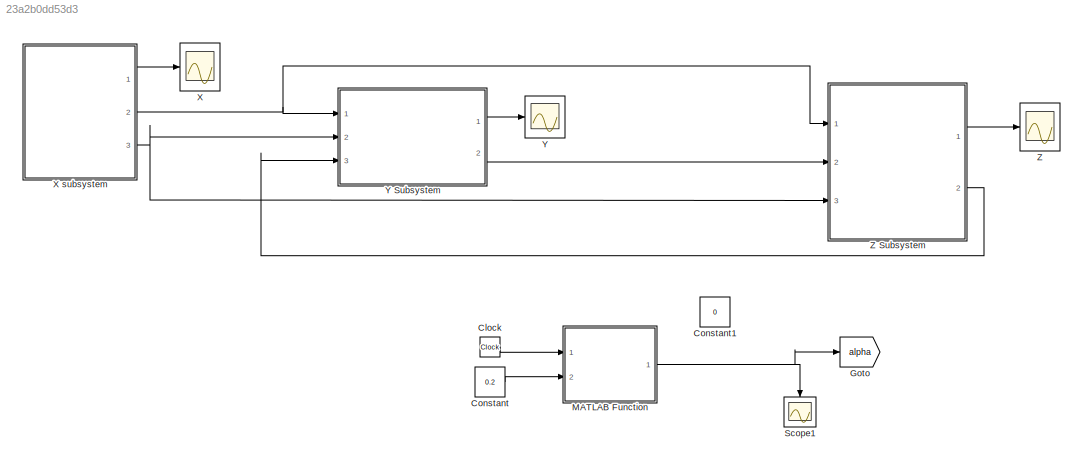
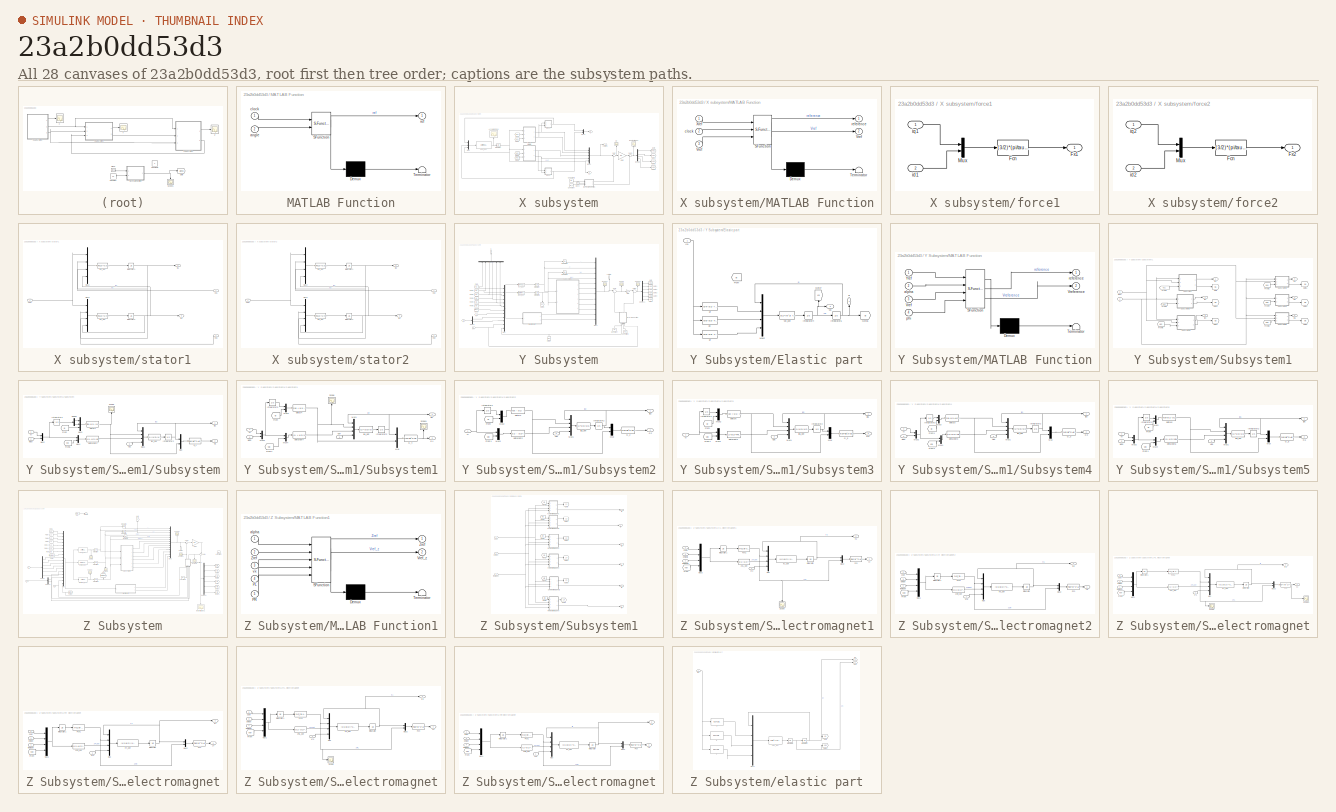
[diagram: thumbnail index - all 28 canvases of the model, root first then tree order]
MODEL slx_23a2b0dd53d3
KIND model
CONFIG AbsTol = auto
CONFIG EnableMultiTasking = off
CONFIG FixedStep = auto
CONFIG MaxStep = auto
CONFIG MinStep = auto
CONFIG RelTol = 1e-3
CONFIG SampleTimeConstraint = Unconstrained
CONFIG Solver = VariableStepAuto
CONFIG SolverName = VariableStepAuto
CONFIG StartTime = 0.0
CONFIG StopTime = 1000
BLOCK [Clock] Clock
BLOCK [Constant] Constant
  Value = 0.2
BLOCK [Constant] Constant1
  Value = 0
BLOCK [Goto] Goto
  GotoTag = alpha
  TagVisibility = global
BLOCK [SubSystem] MATLAB Function
  ErrorFcn = Stateflow.Translate.translate
  PermitHierarchicalResolution = ExplicitOnly
  Ports = [2, 1]
  RequestExecContextInheritance = off
  SFBlockType = MATLAB Function
  TreatAsAtomicUnit = on
BLOCK [Demux] MATLAB Function/ Demux 
  Outputs = 1
  Ports = [1, 1]
BLOCK [S-Function] MATLAB Function/ SFunction 
  EnableBusSupport = on
  FunctionName = sf_sfun
  PortCounts = [2 2]
  Ports = [2, 2]
  SFcnIsStateOwnerBlock = off
  SFunctionDeploymentMode = off
  Tag = Stateflow S-Function 4
BLOCK [Terminator] MATLAB Function/ Terminator 
BLOCK [Inport] MATLAB Function/angle
  Port = 2
BLOCK [Inport] MATLAB Function/clock
BLOCK [Outport] MATLAB Function/ref
BLOCK [Scope] Scope1
  Floating = off
  NameLocation = left
  NumInputPorts = 1
  Ports = [1]
  ScopeSpecificationString = Simulink.scopes.TimeScopeBlockCfg('CurrentConfiguration', extmgr.ConfigurationSet(extmgr.Configuration('Core','General UI',true),extmgr.Configuration('Core','Source UI',true),extmgr.Configuration('Sources','WiredSimulink',true,'DataLoggingVariableName','ScopeData1'),extmgr.Configuration('Visuals','Time Domain',true,'SerializedDisplays',{struct('MinYLimReal','-1.00000','MaxYLimReal','1.00000','YLab...<+1482ch>
BLOCK [Scope] X
  Floating = off
  NumInputPorts = 1
  Ports = [1]
  ScopeSpecificationString = Simulink.scopes.TimeScopeBlockCfg('CurrentConfiguration', extmgr.ConfigurationSet(extmgr.Configuration('Core','General UI',true),extmgr.Configuration('Core','Source UI',true),extmgr.Configuration('Sources','WiredSimulink',true),extmgr.Configuration('Visuals','Time Domain',true,'SerializedDisplays',{struct('MinYLimReal','-192.6938','MaxYLimReal','584.90436','YLabelReal','','MinYLimMag',' 0.00000','...<+1525ch>
BLOCK [SubSystem] X subsystem
  Ports = [0, 3]
  RequestExecContextInheritance = off
BLOCK [Scope] X subsystem/Accelerazione
  Floating = off
  NameLocation = right
  NumInputPorts = 1
  Ports = [1]
  ScopeSpecificationString = Simulink.scopes.TimeScopeBlockCfg('CurrentConfiguration', extmgr.ConfigurationSet(extmgr.Configuration('Core','General UI',true),extmgr.Configuration('Core','Source UI',true),extmgr.Configuration('Sources','WiredSimulink',true,'DataLoggingVariableName','ScopeData1'),extmgr.Configuration('Visuals','Time Domain',true,'SerializedDisplays',{struct('MinYLimReal','-0.52901','MaxYLimReal','5.03514','YLab...<+1505ch>
BLOCK [Clock] X subsystem/Clock
BLOCK [Constant] X subsystem/Constant
  Value = Vref_x
BLOCK [Constant] X subsystem/Constant1
  Value = Xref
BLOCK [Demux] X subsystem/Demux
  Ports = [1, 4]
BLOCK [From] X subsystem/From
  GotoTag = Vq1
BLOCK [From] X subsystem/From1
  GotoTag = Vd1
BLOCK [From] X subsystem/From2
  GotoTag = Vq2
BLOCK [From] X subsystem/From3
  GotoTag = Vd2
BLOCK [Gain] X subsystem/Gain
  Gain = -Kx
  Multiplication = Matrix(K*u)
BLOCK [Goto] X subsystem/Goto
  GotoTag = Vq1
BLOCK [Goto] X subsystem/Goto1
  GotoTag = Vd1
BLOCK [Goto] X subsystem/Goto2
  GotoTag = Vq2
BLOCK [Goto] X subsystem/Goto3
  GotoTag = Vd2
BLOCK [Integrator] X subsystem/Integrator
  Ports = [1, 1]
BLOCK [SubSystem] X subsystem/MATLAB Function
  ErrorFcn = Stateflow.Translate.translate
  PermitHierarchicalResolution = ExplicitOnly
  Ports = [3, 2]
  RequestExecContextInheritance = off
  SFBlockType = MATLAB Function
  TreatAsAtomicUnit = on
BLOCK [Demux] X subsystem/MATLAB Function/ Demux 
  Outputs = 1
  Ports = [1, 1]
BLOCK [S-Function] X subsystem/MATLAB Function/ SFunction 
  EnableBusSupport = on
  FunctionName = sf_sfun
  PortCounts = [3 3]
  Ports = [3, 3]
  SFcnIsStateOwnerBlock = off
  SFunctionDeploymentMode = off
  Tag = Stateflow S-Function 2
BLOCK [Terminator] X subsystem/MATLAB Function/ Terminator 
BLOCK [Outport] X subsystem/MATLAB Function/Vref
  Port = 2
BLOCK [Inport] X subsystem/MATLAB Function/Vref 
  Port = 3
BLOCK [Inport] X subsystem/MATLAB Function/Xref
BLOCK [Inport] X subsystem/MATLAB Function/clock
  Port = 2
BLOCK [Outport] X subsystem/MATLAB Function/reference
BLOCK [Mux] X subsystem/Mux
  DisplayOption = bar
  Inputs = 3
  Ports = [3, 1]
BLOCK [Mux] X subsystem/Mux1
  DisplayOption = bar
  Inputs = 5
  Ports = [5, 1]
BLOCK [Mux] X subsystem/Mux2
  DisplayOption = bar
  Inputs = 2
  Ports = [2, 1]
BLOCK [Outport] X subsystem/P
  Port = 3
BLOCK [Sum] X subsystem/Sum
  Inputs = |+-
  Ports = [2, 1]
BLOCK [Sum] X subsystem/Sum1
  Inputs = |++
  Ports = [2, 1]
BLOCK [Scope] X subsystem/err
  Floating = off
  NameLocation = left
  NumInputPorts = 1
  Ports = [1]
  ScopeSpecificationString = Simulink.scopes.TimeScopeBlockCfg('CurrentConfiguration', extmgr.ConfigurationSet(extmgr.Configuration('Core','General UI',true),extmgr.Configuration('Core','Source UI',true),extmgr.Configuration('Sources','WiredSimulink',true,'DataLoggingVariableName','ScopeData2'),extmgr.Configuration('Visuals','Time Domain',true,'SerializedDisplays',{struct('MinYLimReal','-193.66451','MaxYLimReal','557.22576','...<+1650ch>
BLOCK [SubSystem] X subsystem/force1
  Ports = [2, 1]
  RequestExecContextInheritance = off
BLOCK [Fcn] X subsystem/force1/Fcn
  Expr = (3/2)*(pi/tau)*(Ld*((M/Ld)*i_e) + (Ld-Lq)*u(2))*u(1)
BLOCK [Outport] X subsystem/force1/Fx1
BLOCK [Mux] X subsystem/force1/Mux
  DisplayOption = bar
  Inputs = 2
  Ports = [2, 1]
BLOCK [Inport] X subsystem/force1/id1
  Port = 2
BLOCK [Inport] X subsystem/force1/iq1 
BLOCK [SubSystem] X subsystem/force2
  Ports = [2, 1]
  RequestExecContextInheritance = off
BLOCK [Fcn] X subsystem/force2/Fcn
  Expr = (3/2)*(pi/tau)*(Ld*((M/Ld)*i_e) + (Ld-Lq)*u(2))*u(1)
BLOCK [Outport] X subsystem/force2/Fx2
BLOCK [Mux] X subsystem/force2/Mux
  DisplayOption = bar
  Inputs = 2
  Ports = [2, 1]
BLOCK [Inport] X subsystem/force2/id2
  Port = 2
BLOCK [Inport] X subsystem/force2/iq2 
BLOCK [Scope] X subsystem/input voltages
  Floating = off
  NameLocation = left
  NumInputPorts = 1
  Ports = [1]
  ScopeSpecificationString = Simulink.scopes.TimeScopeBlockCfg('CurrentConfiguration', extmgr.ConfigurationSet(extmgr.Configuration('Core','General UI',true),extmgr.Configuration('Core','Source UI',true),extmgr.Configuration('Sources','WiredSimulink',true,'DataLoggingVariableName','ScopeData3'),extmgr.Configuration('Visuals','Time Domain',true,'SerializedDisplays',{struct('MinYLimReal','-25550.10493','MaxYLimReal','17606.4911...<+1643ch>
BLOCK [SubSystem] X subsystem/stator1
  Ports = [3, 2]
  RequestExecContextInheritance = off
BLOCK [Integrator] X subsystem/stator1/Integrator1
  InitialCondition = iq1_ref
  Ports = [1, 1]
BLOCK [Integrator] X subsystem/stator1/Integrator2
  InitialCondition = id1_ref
  Ports = [1, 1]
BLOCK [Mux] X subsystem/stator1/Mux2
  DisplayOption = bar
  Ports = [4, 1]
BLOCK [Mux] X subsystem/stator1/Mux3
  DisplayOption = bar
  Ports = [4, 1]
BLOCK [Inport] X subsystem/stator1/Vd1
  Port = 3
BLOCK [Inport] X subsystem/stator1/Vq1
  Port = 2
BLOCK [Outport] X subsystem/stator1/id1
  Port = 2
BLOCK [Fcn] X subsystem/stator1/id1_dot
  Expr = -(Rx/Ld)*u(4) - (Lq/Ld)*(u(3))*u(1)*pi/tau + u(2)/Ld
BLOCK [Outport] X subsystem/stator1/iq1
BLOCK [Fcn] X subsystem/stator1/iq1_dot
  Expr = -(Rx/Lq)*u(3) + (Ld/Lq)*((M/Ld)*i_e + u(4))*u(1)*pi/tau + u(2)/Lq
BLOCK [Inport] X subsystem/stator1/xdot
BLOCK [SubSystem] X subsystem/stator2
  Ports = [3, 2]
  RequestExecContextInheritance = off
BLOCK [Integrator] X subsystem/stator2/Integrator1
  InitialCondition = iq2_ref
  Ports = [1, 1]
BLOCK [Integrator] X subsystem/stator2/Integrator2
  InitialCondition = id2_ref
  Ports = [1, 1]
BLOCK [Mux] X subsystem/stator2/Mux2
  DisplayOption = bar
  Ports = [4, 1]
BLOCK [Mux] X subsystem/stator2/Mux3
  DisplayOption = bar
  Ports = [4, 1]
BLOCK [Inport] X subsystem/stator2/Vd2
  Port = 3
BLOCK [Inport] X subsystem/stator2/Vq2
  Port = 2
BLOCK [Outport] X subsystem/stator2/id2
  Port = 2
BLOCK [Fcn] X subsystem/stator2/id2_dot
  Expr = -(Rx/Ld)*u(4) - (Lq/Ld)*(u(3))*u(1)*pi/tau + u(2)/Ld
BLOCK [Outport] X subsystem/stator2/iq2
BLOCK [Fcn] X subsystem/stator2/iq2_dot
  Expr = -(Rx/Lq)*u(3) + (Ld/Lq)*((M/Ld)*i_e + u(4))*u(1)*pi/tau + u(2)/Lq
BLOCK [Inport] X subsystem/stator2/xdot
BLOCK [Outport] X subsystem/vx
  Port = 2
BLOCK [Outport] X subsystem/x states
BLOCK [Fcn] X subsystem/xdot_dot
  Expr = (1/m)*(p*u(1) + p*u(2) - (rho*Sa*Cd/2)*u(3)^2)
BLOCK [Scope] Y
  Floating = off
  NumInputPorts = 1
  Ports = [1]
  ScopeSpecificationString = Simulink.scopes.TimeScopeBlockCfg('CurrentConfiguration', extmgr.ConfigurationSet(extmgr.Configuration('Core','General UI',true),extmgr.Configuration('Core','Source UI',true),extmgr.Configuration('Sources','WiredSimulink',true,'DataLoggingVariableName','ScopeData12'),extmgr.Configuration('Visuals','Time Domain',true,'SerializedDisplays',{struct('MinYLimReal','90.70334','MaxYLimReal','107.40948','Y...<+2000ch>
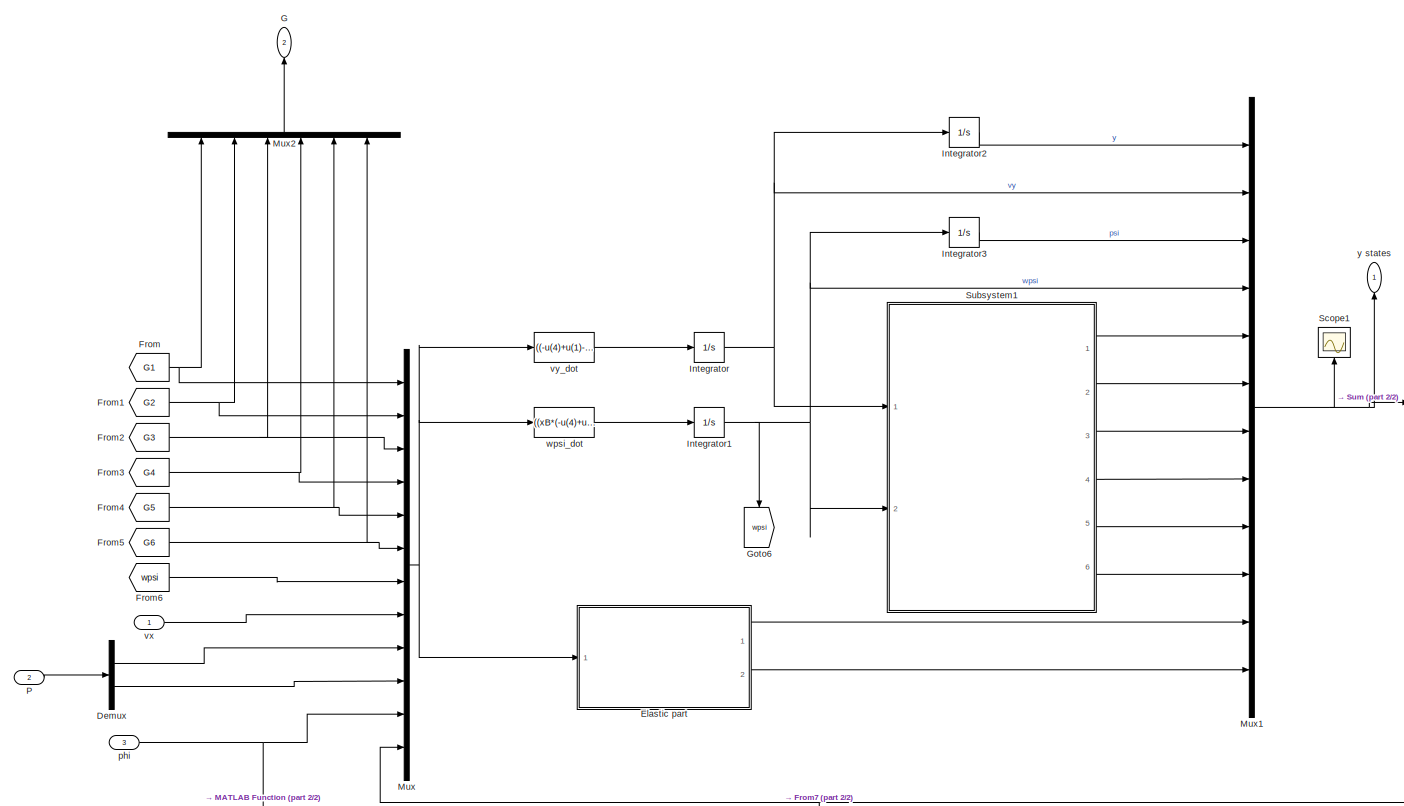
[diagram: Y Subsystem - part 1/2, most of the canvas]
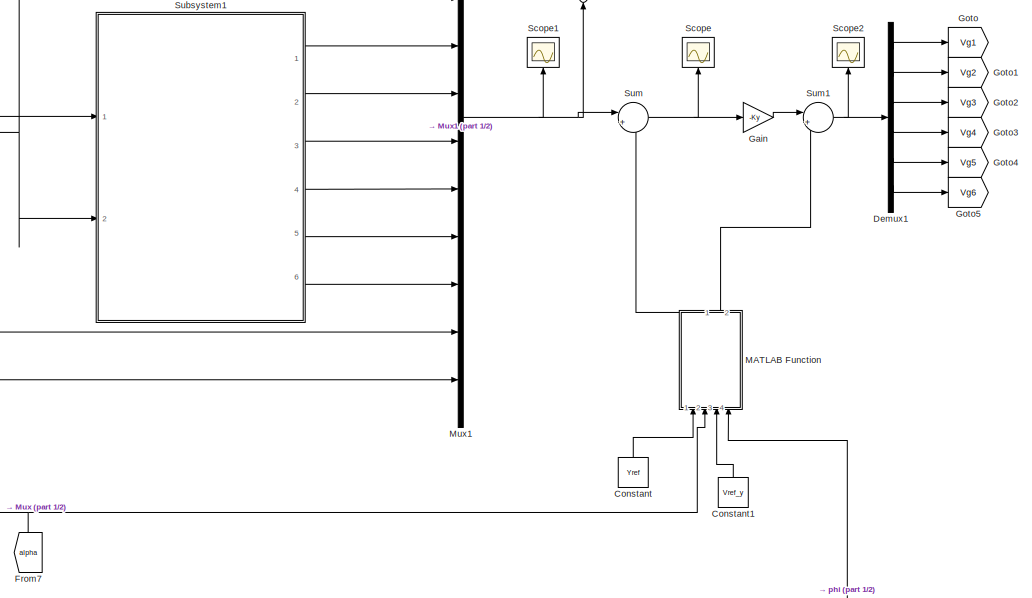
[diagram: Y Subsystem - part 2/2, middle right region]
BLOCK [SubSystem] Y Subsystem
  Ports = [3, 2]
  RequestExecContextInheritance = off
BLOCK [Constant] Y Subsystem/Constant
  NameLocation = right
  Value = Yref
BLOCK [Constant] Y Subsystem/Constant1
  NameLocation = right
  Value = Vref_y
BLOCK [Demux] Y Subsystem/Demux
  Outputs = 2
  Ports = [1, 2]
BLOCK [Demux] Y Subsystem/Demux1
  Outputs = 6
  Ports = [1, 6]
BLOCK [SubSystem] Y Subsystem/Elastic part
  Ports = [1, 2]
  RequestExecContextInheritance = off
BLOCK [From] Y Subsystem/Elastic part/From
  Commented = on
  GotoTag = ql
  TagVisibility = global
BLOCK [Goto] Y Subsystem/Elastic part/Goto6
  GotoTag = ql
  TagVisibility = global
BLOCK [Goto] Y Subsystem/Elastic part/Goto7
  GotoTag = vql
  NameLocation = right
  TagVisibility = global
BLOCK [Inport] Y Subsystem/Elastic part/In1
BLOCK [Integrator] Y Subsystem/Elastic part/Integrator4
  InitialCondition = vql_init
  Ports = [1, 1]
BLOCK [Integrator] Y Subsystem/Elastic part/Integrator5
  InitialCondition = ql_init
  Ports = [1, 1]
BLOCK [Mux] Y Subsystem/Elastic part/Mux2
  DisplayOption = bar
  Ports = [4, 1]
BLOCK [Fcn] Y Subsystem/Elastic part/gc
  Expr = (u(5)-u(2) +(m*g*sin(phiy)-m*radius*cos(phiy)*u(7)^2)/3)/l
BLOCK [Fcn] Y Subsystem/Elastic part/gf
  Expr = (u(4)-u(1) + (m*g*sin(phiy)-m*radius*cos(phiy)*u(7)^2)/3)/l
BLOCK [Fcn] Y Subsystem/Elastic part/gr
  Expr = (u(6)-u(3) +(m*g*sin(phiy)-m*radius*cos(phiy)*u(7)^2)/3)/l
BLOCK [Outport] Y Subsystem/Elastic part/ql
  NameLocation = right
BLOCK [Outport] Y Subsystem/Elastic part/vql
  Port = 2
BLOCK [Fcn] Y Subsystem/Elastic part/vql_dot
  Expr = -u(1)*(w^2) +(u(2)*PHIf)+(u(3)*PHIc)+(u(4)*PHIr)
BLOCK [From] Y Subsystem/From
  GotoTag = G1
  TagVisibility = global
BLOCK [From] Y Subsystem/From1
  GotoTag = G2
  TagVisibility = global
BLOCK [From] Y Subsystem/From2
  GotoTag = G3
  TagVisibility = global
BLOCK [From] Y Subsystem/From3
  GotoTag = G4
  TagVisibility = global
BLOCK [From] Y Subsystem/From4
  GotoTag = G5
  TagVisibility = global
BLOCK [From] Y Subsystem/From5
  GotoTag = G6
  TagVisibility = global
BLOCK [From] Y Subsystem/From6
  GotoTag = wpsi
BLOCK [From] Y Subsystem/From7
  GotoTag = alpha
  NameLocation = right
  TagVisibility = global
BLOCK [Outport] Y Subsystem/G
  NameLocation = right
  Port = 2
BLOCK [Gain] Y Subsystem/Gain
  Gain = -Ky
  Multiplication = Matrix(K*u)
BLOCK [Goto] Y Subsystem/Goto
  GotoTag = Vg1
  TagVisibility = global
BLOCK [Goto] Y Subsystem/Goto1
  GotoTag = Vg2
  TagVisibility = global
BLOCK [Goto] Y Subsystem/Goto2
  GotoTag = Vg3
  TagVisibility = global
BLOCK [Goto] Y Subsystem/Goto3
  GotoTag = Vg4
  TagVisibility = global
BLOCK [Goto] Y Subsystem/Goto4
  GotoTag = Vg5
  TagVisibility = global
BLOCK [Goto] Y Subsystem/Goto5
  GotoTag = Vg6
  TagVisibility = global
BLOCK [Goto] Y Subsystem/Goto6
  GotoTag = wpsi
  NameLocation = left
BLOCK [Integrator] Y Subsystem/Integrator
  InitialCondition = vy_init
  Ports = [1, 1]
BLOCK [Integrator] Y Subsystem/Integrator1
  InitialCondition = wpsi_init
  Ports = [1, 1]
BLOCK [Integrator] Y Subsystem/Integrator2
  InitialCondition = y_init
  Ports = [1, 1]
BLOCK [Integrator] Y Subsystem/Integrator3
  InitialCondition = psi_init
  Ports = [1, 1]
BLOCK [SubSystem] Y Subsystem/MATLAB Function
  ErrorFcn = Stateflow.Translate.translate
  NameLocation = right
  PermitHierarchicalResolution = ExplicitOnly
  Ports = [4, 2]
  RequestExecContextInheritance = off
  SFBlockType = MATLAB Function
  TreatAsAtomicUnit = on
BLOCK [Demux] Y Subsystem/MATLAB Function/ Demux 
  Outputs = 1
  Ports = [1, 1]
BLOCK [S-Function] Y Subsystem/MATLAB Function/ SFunction 
  EnableBusSupport = on
  FunctionName = sf_sfun
  PortCounts = [4 3]
  Ports = [4, 3]
  SFcnIsStateOwnerBlock = off
  SFunctionDeploymentMode = off
  Tag = Stateflow S-Function 1
BLOCK [Terminator] Y Subsystem/MATLAB Function/ Terminator 
BLOCK [Inport] Y Subsystem/MATLAB Function/Vref
  Port = 3
BLOCK [Outport] Y Subsystem/MATLAB Function/Vreference
  Port = 2
BLOCK [Inport] Y Subsystem/MATLAB Function/Yref
BLOCK [Inport] Y Subsystem/MATLAB Function/alpha
  Port = 2
BLOCK [Inport] Y Subsystem/MATLAB Function/phi
  Port = 4
BLOCK [Outport] Y Subsystem/MATLAB Function/reference
BLOCK [Mux] Y Subsystem/Mux
  DisplayOption = bar
  Inputs = 12
  Ports = [12, 1]
BLOCK [Mux] Y Subsystem/Mux1
  DisplayOption = bar
  Inputs = 12
  Ports = [12, 1]
BLOCK [Mux] Y Subsystem/Mux2
  DisplayOption = bar
  Inputs = 6
  NameLocation = right
  Ports = [6, 1]
BLOCK [Inport] Y Subsystem/P
  Port = 2
BLOCK [Scope] Y Subsystem/Scope
  Floating = off
  NameLocation = right
  NumInputPorts = 1
  Ports = [1]
  ScopeSpecificationString = Simulink.scopes.TimeScopeBlockCfg('CurrentConfiguration', extmgr.ConfigurationSet(extmgr.Configuration('Core','General UI',true),extmgr.Configuration('Core','Source UI',true),extmgr.Configuration('Sources','WiredSimulink',true,'DataLoggingVariableName','ScopeData4'),extmgr.Configuration('Visuals','Time Domain',true,'SerializedDisplays',{struct('MinYLimReal','-12.90778','MaxYLimReal','8.86352','YLa...<+1789ch>
BLOCK [Scope] Y Subsystem/Scope1
  Floating = off
  NameLocation = right
  NumInputPorts = 1
  Ports = [1]
  ScopeSpecificationString = Simulink.scopes.TimeScopeBlockCfg('CurrentConfiguration', extmgr.ConfigurationSet(extmgr.Configuration('Core','General UI',true),extmgr.Configuration('Core','Source UI',true),extmgr.Configuration('Sources','WiredSimulink',true,'DataLoggingVariableName','ScopeData5'),extmgr.Configuration('Visuals','Time Domain',true,'SerializedDisplays',{struct('MinYLimReal','-0.00079','MaxYLimReal','0.00059','YLab...<+1902ch>
BLOCK [Scope] Y Subsystem/Scope2
  Floating = off
  NameLocation = right
  NumInputPorts = 1
  Ports = [1]
  ScopeSpecificationString = Simulink.scopes.TimeScopeBlockCfg('CurrentConfiguration', extmgr.ConfigurationSet(extmgr.Configuration('Core','General UI',true),extmgr.Configuration('Core','Source UI',true),extmgr.Configuration('Sources','WiredSimulink',true,'DataLoggingVariableName','ScopeData6'),extmgr.Configuration('Visuals','Time Domain',true,'SerializedDisplays',{struct('MinYLimReal','868.97621','MaxYLimReal','1064.30314','...<+1833ch>
BLOCK [SubSystem] Y Subsystem/Subsystem1
  Ports = [2, 6]
  RequestExecContextInheritance = off
BLOCK [From] Y Subsystem/Subsystem1/From1
  GotoTag = Vg1
  TagVisibility = global
BLOCK [From] Y Subsystem/Subsystem1/From2
  GotoTag = Vg4
  TagVisibility = global
BLOCK [From] Y Subsystem/Subsystem1/From3
  GotoTag = Vg2
  TagVisibility = global
BLOCK [From] Y Subsystem/Subsystem1/From4
  GotoTag = Vg5
  TagVisibility = global
BLOCK [From] Y Subsystem/Subsystem1/From5
  GotoTag = Vg3
  TagVisibility = global
BLOCK [From] Y Subsystem/Subsystem1/From6
  GotoTag = Vg6
  TagVisibility = global
BLOCK [Goto] Y Subsystem/Subsystem1/Goto
  GotoTag = G1
  TagVisibility = global
BLOCK [Goto] Y Subsystem/Subsystem1/Goto1
  GotoTag = G4
  TagVisibility = global
BLOCK [Goto] Y Subsystem/Subsystem1/Goto2
  GotoTag = G5
  TagVisibility = global
BLOCK [Goto] Y Subsystem/Subsystem1/Goto3
  GotoTag = G2
  TagVisibility = global
BLOCK [Goto] Y Subsystem/Subsystem1/Goto4
  GotoTag = G3
  TagVisibility = global
BLOCK [Goto] Y Subsystem/Subsystem1/Goto5
  GotoTag = G6
  TagVisibility = global
BLOCK [SubSystem] Y Subsystem/Subsystem1/Subsystem
  Ports = [3, 2]
  RequestExecContextInheritance = off
BLOCK [Demux] Y Subsystem/Subsystem1/Subsystem/Demux
  Outputs = 2
  Ports = [1, 2]
BLOCK [From] Y Subsystem/Subsystem1/Subsystem/From
  GotoTag = ql
  TagVisibility = global
BLOCK [From] Y Subsystem/Subsystem1/Subsystem/From1
  GotoTag = vql
  TagVisibility = global
BLOCK [Outport] Y Subsystem/Subsystem1/Subsystem/G1
  Port = 2
BLOCK [Fcn] Y Subsystem/Subsystem1/Subsystem/G_1
  Expr = (mu0*Ng^2*Ag/4)*(u(1)/u(2))^2
BLOCK [Integrator] Y Subsystem/Subsystem1/Subsystem/Integrator2
  InitialCondition = ig1_init
  Ports = [1, 1]
BLOCK [Integrator] Y Subsystem/Subsystem1/Subsystem/Integrator3
  InitialCondition = [y_init; psi_init]
  Ports = [1, 1]
BLOCK [Mux] Y Subsystem/Subsystem1/Subsystem/Mux
  DisplayOption = bar
  Inputs = 2
  Ports = [2, 1]
BLOCK [Mux] Y Subsystem/Subsystem1/Subsystem/Mux1
  DisplayOption = bar
  Ports = [4, 1]
BLOCK [Mux] Y Subsystem/Subsystem1/Subsystem/Mux2
  DisplayOption = bar
  Inputs = 2
  Ports = [2, 1]
BLOCK [Mux] Y Subsystem/Subsystem1/Subsystem/Mux3
  DisplayOption = bar
  Inputs = 3
  Ports = [3, 1]
BLOCK [Mux] Y Subsystem/Subsystem1/Subsystem/Mux4
  DisplayOption = bar
  Inputs = 2
  Ports = [2, 1]
BLOCK [Scope] Y Subsystem/Subsystem1/Subsystem/Scope
  Floating = off
  NameLocation = right
  NumInputPorts = 1
  Ports = [1]
  ScopeSpecificationString = Simulink.scopes.TimeScopeBlockCfg('CurrentConfiguration', extmgr.ConfigurationSet(extmgr.Configuration('Core','General UI',true),extmgr.Configuration('Core','Source UI',true),extmgr.Configuration('Sources','WiredSimulink',true,'DataLoggingVariableName','ScopeData1'),extmgr.Configuration('Visuals','Time Domain',true,'SerializedDisplays',{struct('MinYLimReal','0.00705','MaxYLimReal','0.03648','YLabe...<+1466ch>
BLOCK [Inport] Y Subsystem/Subsystem1/Subsystem/Vg1
  Port = 3
BLOCK [Fcn] Y Subsystem/Subsystem1/Subsystem/deltay1
  Expr = ymax-u(1)-(u(2)*xB)-(u(3)*PHI4)
BLOCK [Fcn] Y Subsystem/Subsystem1/Subsystem/deltaydot1
  Expr = -u(1)-u(2)*xB - u(3)*PHI4
BLOCK [Outport] Y Subsystem/Subsystem1/Subsystem/ig1
BLOCK [Fcn] Y Subsystem/Subsystem1/Subsystem/ig1_dot
  Expr = u(1)*(u(3)/u(2))-(2/(mu0*(Ng^2)*Ag))*u(2)*(Rg*u(1)-u(4));
BLOCK [Inport] Y Subsystem/Subsystem1/Subsystem/vy
BLOCK [Inport] Y Subsystem/Subsystem1/Subsystem/wpsi
  Port = 2
BLOCK [SubSystem] Y Subsystem/Subsystem1/Subsystem1
  Ports = [3, 2]
  RequestExecContextInheritance = off
BLOCK [From] Y Subsystem/Subsystem1/Subsystem1/From
  GotoTag = ql
  TagVisibility = global
BLOCK [From] Y Subsystem/Subsystem1/Subsystem1/From1
  GotoTag = vql
  TagVisibility = global
BLOCK [Outport] Y Subsystem/Subsystem1/Subsystem1/G4
  Port = 2
BLOCK [Fcn] Y Subsystem/Subsystem1/Subsystem1/G_4
  Expr = (mu0*Ng^2*Ag/4)*(u(1)/u(2))^2
BLOCK [Integrator] Y Subsystem/Subsystem1/Subsystem1/Integrator2
  InitialCondition = ig1_init
  Ports = [1, 1]
BLOCK [Integrator] Y Subsystem/Subsystem1/Subsystem1/Integrator3
  InitialCondition = [y_init; psi_init]
  Ports = [1, 1]
BLOCK [Mux] Y Subsystem/Subsystem1/Subsystem1/Mux
  DisplayOption = bar
  Inputs = 2
  Ports = [2, 1]
BLOCK [Mux] Y Subsystem/Subsystem1/Subsystem1/Mux1
  DisplayOption = bar
  Ports = [4, 1]
BLOCK [Mux] Y Subsystem/Subsystem1/Subsystem1/Mux2
  DisplayOption = bar
  Inputs = 2
  Ports = [2, 1]
BLOCK [Mux] Y Subsystem/Subsystem1/Subsystem1/Mux3
  DisplayOption = bar
  Inputs = 2
  Ports = [2, 1]
BLOCK [Mux] Y Subsystem/Subsystem1/Subsystem1/Mux4
  DisplayOption = bar
  Inputs = 2
  Ports = [2, 1]
BLOCK [Scope] Y Subsystem/Subsystem1/Subsystem1/Scope
  Floating = off
  NameLocation = right
  NumInputPorts = 1
  Ports = [1]
  ScopeSpecificationString = Simulink.scopes.TimeScopeBlockCfg('CurrentConfiguration', extmgr.ConfigurationSet(extmgr.Configuration('Core','General UI',true),extmgr.Configuration('Core','Source UI',true),extmgr.Configuration('Sources','WiredSimulink',true,'DataLoggingVariableName','ScopeData1'),extmgr.Configuration('Visuals','Time Domain',true,'SerializedDisplays',{struct('MinYLimReal','0.019999992','MaxYLimReal','0.020000007...<+1442ch>
BLOCK [Scope] Y Subsystem/Subsystem1/Subsystem1/Scope1
  Floating = off
  NameLocation = right
  NumInputPorts = 1
  Ports = [1]
  ScopeSpecificationString = Simulink.scopes.TimeScopeBlockCfg('CurrentConfiguration', extmgr.ConfigurationSet(extmgr.Configuration('Core','General UI',true),extmgr.Configuration('Core','Source UI',true),extmgr.Configuration('Sources','WiredSimulink',true,'DataLoggingVariableName','ScopeData1'),extmgr.Configuration('Visuals','Time Domain',true,'SerializedDisplays',{struct('MinYLimReal','19531.23699','MaxYLimReal','19531.2584'...<+1465ch>
BLOCK [Inport] Y Subsystem/Subsystem1/Subsystem1/Vg4
  Port = 3
BLOCK [Fcn] Y Subsystem/Subsystem1/Subsystem1/deltay4
  Expr = ymax + u(1) + u(2)*xB + u(3)*PHI4
BLOCK [Fcn] Y Subsystem/Subsystem1/Subsystem1/deltaydot4
  Expr = u(1) + u(2)*xB + u(3)*PHI4
BLOCK [Outport] Y Subsystem/Subsystem1/Subsystem1/ig4
BLOCK [Fcn] Y Subsystem/Subsystem1/Subsystem1/ig4_dot
  Expr = u(1)*(u(3)/u(2))-(2/(mu0*(Ng^2)*Ag))*u(2)*(Rg*u(1)-u(4));
BLOCK [Inport] Y Subsystem/Subsystem1/Subsystem1/vy
BLOCK [Inport] Y Subsystem/Subsystem1/Subsystem1/wpsi
  Port = 2
BLOCK [SubSystem] Y Subsystem/Subsystem1/Subsystem2
  Ports = [2, 2]
  RequestExecContextInheritance = off
BLOCK [From] Y Subsystem/Subsystem1/Subsystem2/From
  GotoTag = ql
  TagVisibility = global
BLOCK [From] Y Subsystem/Subsystem1/Subsystem2/From1
  GotoTag = vql
  TagVisibility = global
BLOCK [Outport] Y Subsystem/Subsystem1/Subsystem2/G2
  Port = 2
BLOCK [Fcn] Y Subsystem/Subsystem1/Subsystem2/G_2
  Expr = (mu0*Ng^2*Ag/4)*(u(1)/u(2))^2
BLOCK [Integrator] Y Subsystem/Subsystem1/Subsystem2/Integrator2
  InitialCondition = ig4_init
  Ports = [1, 1]
BLOCK [Integrator] Y Subsystem/Subsystem1/Subsystem2/Integrator3
  InitialCondition = y_init
  Ports = [1, 1]
BLOCK [Mux] Y Subsystem/Subsystem1/Subsystem2/Mux
  DisplayOption = bar
  Inputs = 2
  Ports = [2, 1]
BLOCK [Mux] Y Subsystem/Subsystem1/Subsystem2/Mux1
  DisplayOption = bar
  Ports = [4, 1]
BLOCK [Mux] Y Subsystem/Subsystem1/Subsystem2/Mux2
  DisplayOption = bar
  Inputs = 2
  Ports = [2, 1]
BLOCK [Mux] Y Subsystem/Subsystem1/Subsystem2/Mux3
  DisplayOption = bar
  Inputs = 2
  Ports = [2, 1]
BLOCK [Inport] Y Subsystem/Subsystem1/Subsystem2/Vg2
  Port = 2
BLOCK [Fcn] Y Subsystem/Subsystem1/Subsystem2/deltay2
  Expr = ymax - u(1) - u(2)*PHI12
BLOCK [Fcn] Y Subsystem/Subsystem1/Subsystem2/deltaydot2
  Expr = -u(1) - u(2)*PHI12
BLOCK [Outport] Y Subsystem/Subsystem1/Subsystem2/ig2
BLOCK [Fcn] Y Subsystem/Subsystem1/Subsystem2/ig2_dot
  Expr = u(1)*u(3)/u(2)-(2/(mu0*(Ng^2)*Ag))*u(2)*(Rg*u(1)-u(4));
BLOCK [Inport] Y Subsystem/Subsystem1/Subsystem2/vy
BLOCK [SubSystem] Y Subsystem/Subsystem1/Subsystem3
  Ports = [2, 2]
  RequestExecContextInheritance = off
BLOCK [From] Y Subsystem/Subsystem1/Subsystem3/From
  GotoTag = ql
  TagVisibility = global
BLOCK [From] Y Subsystem/Subsystem1/Subsystem3/From1
  GotoTag = vql
  TagVisibility = global
BLOCK [Outport] Y Subsystem/Subsystem1/Subsystem3/G5
  Port = 2
BLOCK [Fcn] Y Subsystem/Subsystem1/Subsystem3/G_5
  Expr = (mu0*Ng^2*Ag/4)*(u(1)/u(2))^2
BLOCK [Integrator] Y Subsystem/Subsystem1/Subsystem3/Integrator2
  InitialCondition = ig4_init
  Ports = [1, 1]
BLOCK [Integrator] Y Subsystem/Subsystem1/Subsystem3/Integrator3
  InitialCondition = y_init
  Ports = [1, 1]
BLOCK [Mux] Y Subsystem/Subsystem1/Subsystem3/Mux
  DisplayOption = bar
  Inputs = 2
  Ports = [2, 1]
BLOCK [Mux] Y Subsystem/Subsystem1/Subsystem3/Mux1
  DisplayOption = bar
  Ports = [4, 1]
BLOCK [Mux] Y Subsystem/Subsystem1/Subsystem3/Mux2
  DisplayOption = bar
  Inputs = 2
  Ports = [2, 1]
BLOCK [Mux] Y Subsystem/Subsystem1/Subsystem3/Mux3
  DisplayOption = bar
  Inputs = 2
  Ports = [2, 1]
BLOCK [Inport] Y Subsystem/Subsystem1/Subsystem3/Vg5
  Port = 2
BLOCK [Fcn] Y Subsystem/Subsystem1/Subsystem3/deltay5
  Expr = ymax + u(1) + u(2)*PHI12
BLOCK [Fcn] Y Subsystem/Subsystem1/Subsystem3/deltaydot5
  Expr = u(1)+u(2)*PHI12
BLOCK [Outport] Y Subsystem/Subsystem1/Subsystem3/ig5
BLOCK [Fcn] Y Subsystem/Subsystem1/Subsystem3/ig5_dot
  Expr = u(1)*u(3)/u(2)-(2/(mu0*(Ng^2)*Ag))*u(2)*(Rg*u(1)-u(4));
BLOCK [Inport] Y Subsystem/Subsystem1/Subsystem3/vy
BLOCK [SubSystem] Y Subsystem/Subsystem1/Subsystem4
  Ports = [3, 2]
  RequestExecContextInheritance = off
BLOCK [From] Y Subsystem/Subsystem1/Subsystem4/From1
  GotoTag = ql
  TagVisibility = global
BLOCK [From] Y Subsystem/Subsystem1/Subsystem4/From2
  GotoTag = vql
  TagVisibility = global
BLOCK [Outport] Y Subsystem/Subsystem1/Subsystem4/G3
  Port = 2
BLOCK [Fcn] Y Subsystem/Subsystem1/Subsystem4/G_3
  Expr = (mu0*Ng^2*Ag/4)*(u(1)/u(2))^2
BLOCK [Integrator] Y Subsystem/Subsystem1/Subsystem4/Integrator2
  InitialCondition = ig3_init
  Ports = [1, 1]
BLOCK [Integrator] Y Subsystem/Subsystem1/Subsystem4/Integrator3
  InitialCondition = [y_init; psi_init]
  Ports = [1, 1]
BLOCK [Mux] Y Subsystem/Subsystem1/Subsystem4/Mux
  DisplayOption = bar
  Inputs = 2
  Ports = [2, 1]
BLOCK [Mux] Y Subsystem/Subsystem1/Subsystem4/Mux1
  DisplayOption = bar
  Ports = [4, 1]
BLOCK [Mux] Y Subsystem/Subsystem1/Subsystem4/Mux2
  DisplayOption = bar
  Inputs = 2
  Ports = [2, 1]
BLOCK [Mux] Y Subsystem/Subsystem1/Subsystem4/Mux3
  DisplayOption = bar
  Inputs = 2
  Ports = [2, 1]
BLOCK [Mux] Y Subsystem/Subsystem1/Subsystem4/Mux4
  DisplayOption = bar
  Inputs = 2
  Ports = [2, 1]
BLOCK [Inport] Y Subsystem/Subsystem1/Subsystem4/Vg3
  Port = 3
BLOCK [Fcn] Y Subsystem/Subsystem1/Subsystem4/deltay3
  Expr = ymax-u(1)+u(2)*xB - u(3)*PHI20
BLOCK [Fcn] Y Subsystem/Subsystem1/Subsystem4/deltaydot3
  Expr = -u(1)+u(2)*xB - u(3)*PHI20
BLOCK [Outport] Y Subsystem/Subsystem1/Subsystem4/ig3
BLOCK [Fcn] Y Subsystem/Subsystem1/Subsystem4/ig3_dot
  Expr = u(1)*u(3)/u(2)-(2/(mu0*(Ng^2)*Ag))*u(2)*(Rg*u(1)-u(4));
BLOCK [Inport] Y Subsystem/Subsystem1/Subsystem4/vy
BLOCK [Inport] Y Subsystem/Subsystem1/Subsystem4/wpsi
  Port = 2
BLOCK [SubSystem] Y Subsystem/Subsystem1/Subsystem5
  Ports = [3, 2]
  RequestExecContextInheritance = off
BLOCK [From] Y Subsystem/Subsystem1/Subsystem5/From
  GotoTag = ql
  TagVisibility = global
BLOCK [From] Y Subsystem/Subsystem1/Subsystem5/From1
  GotoTag = vql
  TagVisibility = global
BLOCK [Outport] Y Subsystem/Subsystem1/Subsystem5/G6
  Port = 2
BLOCK [Fcn] Y Subsystem/Subsystem1/Subsystem5/G_6
  Expr = (mu0*Ng^2*Ag/4)*(u(1)/u(2))^2
BLOCK [Integrator] Y Subsystem/Subsystem1/Subsystem5/Integrator2
  InitialCondition = ig3_init
  Ports = [1, 1]
BLOCK [Integrator] Y Subsystem/Subsystem1/Subsystem5/Integrator3
  InitialCondition = [y_init; psi_init]
  Ports = [1, 1]
BLOCK [Mux] Y Subsystem/Subsystem1/Subsystem5/Mux
  DisplayOption = bar
  Inputs = 2
  Ports = [2, 1]
BLOCK [Mux] Y Subsystem/Subsystem1/Subsystem5/Mux1
  DisplayOption = bar
  Ports = [4, 1]
BLOCK [Mux] Y Subsystem/Subsystem1/Subsystem5/Mux2
  DisplayOption = bar
  Inputs = 2
  Ports = [2, 1]
BLOCK [Mux] Y Subsystem/Subsystem1/Subsystem5/Mux3
  DisplayOption = bar
  Inputs = 2
  Ports = [2, 1]
BLOCK [Mux] Y Subsystem/Subsystem1/Subsystem5/Mux4
  DisplayOption = bar
  Inputs = 2
  Ports = [2, 1]
BLOCK [Inport] Y Subsystem/Subsystem1/Subsystem5/Vg6
  Port = 3
BLOCK [Fcn] Y Subsystem/Subsystem1/Subsystem5/deltay6
  Expr = ymax+u(1)-u(2)*xB+u(3)*PHI20
BLOCK [Fcn] Y Subsystem/Subsystem1/Subsystem5/deltaydot6
  Expr = u(1)-u(2)*xB+u(3)*PHI20
BLOCK [Fcn] Y Subsystem/Subsystem1/Subsystem5/ig3_dot
  Expr = u(1)*u(3)/u(2)-(2/(mu0*(Ng^2)*Ag))*u(2)*(Rg*u(1)-u(4));
BLOCK [Outport] Y Subsystem/Subsystem1/Subsystem5/ig6
BLOCK [Inport] Y Subsystem/Subsystem1/Subsystem5/vy
BLOCK [Inport] Y Subsystem/Subsystem1/Subsystem5/wpsi
  Port = 2
BLOCK [Outport] Y Subsystem/Subsystem1/ig1
BLOCK [Outport] Y Subsystem/Subsystem1/ig2
  Port = 2
BLOCK [Outport] Y Subsystem/Subsystem1/ig3
  Port = 3
BLOCK [Outport] Y Subsystem/Subsystem1/ig4
  Port = 4
BLOCK [Outport] Y Subsystem/Subsystem1/ig5
  Port = 5
BLOCK [Outport] Y Subsystem/Subsystem1/ig6
  Port = 6
BLOCK [Inport] Y Subsystem/Subsystem1/vy
BLOCK [Inport] Y Subsystem/Subsystem1/wpsi
  Port = 2
BLOCK [Sum] Y Subsystem/Sum
  Inputs = |+-
  Ports = [2, 1]
BLOCK [Sum] Y Subsystem/Sum1
  Inputs = |++
  Ports = [2, 1]
BLOCK [Inport] Y Subsystem/phi
  Port = 3
BLOCK [Inport] Y Subsystem/vx
BLOCK [Fcn] Y Subsystem/vy_dot
  Expr = ((-u(4)+u(1)-u(5)+u(2)-u(6)+u(3)+m*g*sin(u(11)+u(12))-m*Ra*(u(7)^2)*cos(u(11)+u(12)))/m) - u(8)*u(7)
BLOCK [Fcn] Y Subsystem/wpsi_dot
  Expr = ((xB*(-u(4)+u(1)+u(6)-u(3))+yB*(-u(9)+u(10)))/Jz)
BLOCK [Outport] Y Subsystem/y states
  NameLocation = right
BLOCK [Scope] Z
  Floating = off
  NumInputPorts = 1
  Ports = [1]
  ScopeSpecificationString = Simulink.scopes.TimeScopeBlockCfg('CurrentConfiguration', extmgr.ConfigurationSet(extmgr.Configuration('Core','General UI',true),extmgr.Configuration('Core','Source UI',true),extmgr.Configuration('Sources','WiredSimulink',true,'DataLoggingVariableName','ScopeData13'),extmgr.Configuration('Visuals','Time Domain',true,'SerializedDisplays',{struct('MinYLimReal','13.29185','MaxYLimReal','24.39141','YL...<+2083ch>
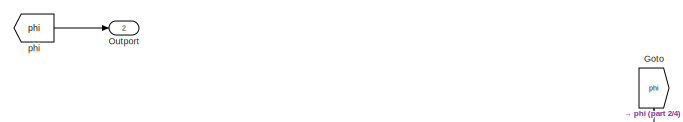
[diagram: Z Subsystem - part 1/4, top center region]
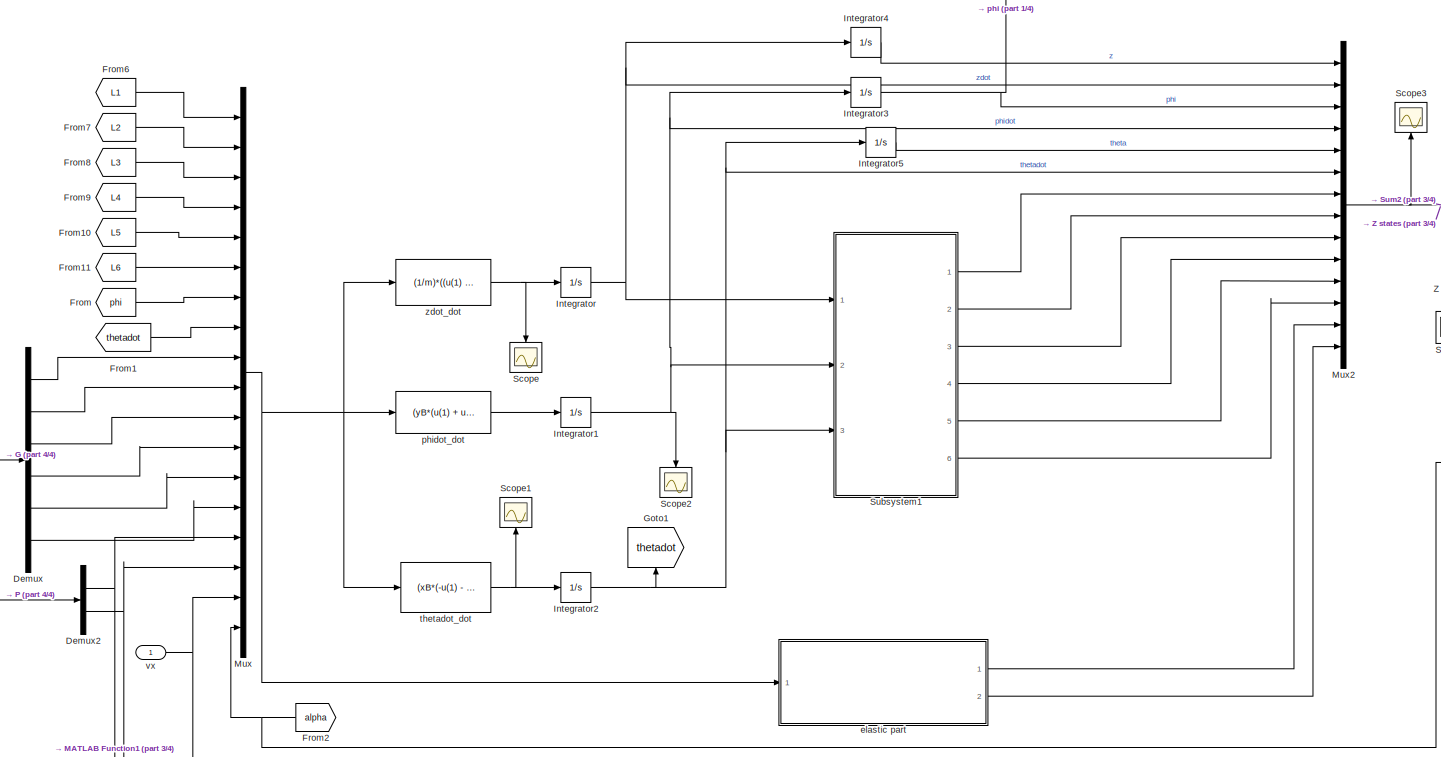
[diagram: Z Subsystem - part 2/4, central region]
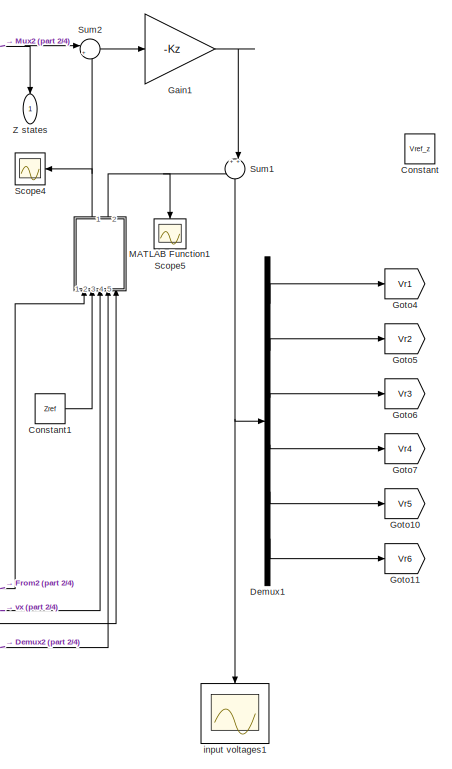
[diagram: Z Subsystem - part 3/4, middle right region]
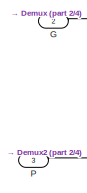
[diagram: Z Subsystem - part 4/4, middle left region]
BLOCK [SubSystem] Z Subsystem
  Ports = [3, 2]
  RequestExecContextInheritance = off
BLOCK [Constant] Z Subsystem/Constant
  Commented = on
  NameLocation = top
  Value = Vref_z
BLOCK [Constant] Z Subsystem/Constant1
  Value = Zref
BLOCK [Demux] Z Subsystem/Demux
  Outputs = 6
  Ports = [1, 6]
BLOCK [Demux] Z Subsystem/Demux1
  Outputs = 6
  Ports = [1, 6]
BLOCK [Demux] Z Subsystem/Demux2
  Outputs = 2
  Ports = [1, 2]
BLOCK [From] Z Subsystem/From
  GotoTag = phi
  NameLocation = top
BLOCK [From] Z Subsystem/From1
  GotoTag = thetadot
  NameLocation = top
BLOCK [From] Z Subsystem/From10
  GotoTag = L5
  TagVisibility = global
BLOCK [From] Z Subsystem/From11
  GotoTag = L6
  TagVisibility = global
BLOCK [From] Z Subsystem/From2
  GotoTag = alpha
  TagVisibility = global
BLOCK [From] Z Subsystem/From6
  GotoTag = L1
  TagVisibility = global
BLOCK [From] Z Subsystem/From7
  GotoTag = L2
  TagVisibility = global
BLOCK [From] Z Subsystem/From8
  GotoTag = L3
  TagVisibility = global
BLOCK [From] Z Subsystem/From9
  GotoTag = L4
  TagVisibility = global
BLOCK [Inport] Z Subsystem/G
  Port = 2
BLOCK [Gain] Z Subsystem/Gain1
  Gain = -Kz
  Multiplication = Matrix(K*u)
BLOCK [Goto] Z Subsystem/Goto
  GotoTag = phi
  NameLocation = right
BLOCK [Goto] Z Subsystem/Goto1
  GotoTag = thetadot
  NameLocation = right
BLOCK [Goto] Z Subsystem/Goto10
  GotoTag = Vr5
  TagVisibility = global
BLOCK [Goto] Z Subsystem/Goto11
  GotoTag = Vr6
  TagVisibility = global
BLOCK [Goto] Z Subsystem/Goto4
  GotoTag = Vr1
  TagVisibility = global
BLOCK [Goto] Z Subsystem/Goto5
  GotoTag = Vr2
  TagVisibility = global
BLOCK [Goto] Z Subsystem/Goto6
  GotoTag = Vr3
  TagVisibility = global
BLOCK [Goto] Z Subsystem/Goto7
  GotoTag = Vr4
  TagVisibility = global
BLOCK [Integrator] Z Subsystem/Integrator
  Ports = [1, 1]
BLOCK [Integrator] Z Subsystem/Integrator1
  Ports = [1, 1]
BLOCK [Integrator] Z Subsystem/Integrator2
  Ports = [1, 1]
BLOCK [Integrator] Z Subsystem/Integrator3
  InitialCondition = phi_init
  Ports = [1, 1]
BLOCK [Integrator] Z Subsystem/Integrator4
  InitialCondition = h
  Ports = [1, 1]
BLOCK [Integrator] Z Subsystem/Integrator5
  InitialCondition = theta_init
  Ports = [1, 1]
BLOCK [SubSystem] Z Subsystem/MATLAB Function1
  ErrorFcn = Stateflow.Translate.translate
  NameLocation = right
  PermitHierarchicalResolution = ExplicitOnly
  Ports = [5, 2]
  RequestExecContextInheritance = off
  SFBlockType = MATLAB Function
  TreatAsAtomicUnit = on
BLOCK [Demux] Z Subsystem/MATLAB Function1/ Demux 
  Outputs = 1
  Ports = [1, 1]
BLOCK [S-Function] Z Subsystem/MATLAB Function1/ SFunction 
  EnableBusSupport = on
  FunctionName = sf_sfun
  PortCounts = [5 3]
  Ports = [5, 3]
  SFcnIsStateOwnerBlock = off
  SFunctionDeploymentMode = off
  Tag = Stateflow S-Function 3
BLOCK [Terminator] Z Subsystem/MATLAB Function1/ Terminator 
BLOCK [Inport] Z Subsystem/MATLAB Function1/PL
  Port = 4
BLOCK [Inport] Z Subsystem/MATLAB Function1/PR
  Port = 5
BLOCK [Outport] Z Subsystem/MATLAB Function1/Vref_z
  Port = 2
BLOCK [Outport] Z Subsystem/MATLAB Function1/Zref
BLOCK [Inport] Z Subsystem/MATLAB Function1/Zref 
  Port = 2
BLOCK [Inport] Z Subsystem/MATLAB Function1/alpha
BLOCK [Inport] Z Subsystem/MATLAB Function1/vx
  Port = 3
BLOCK [Mux] Z Subsystem/Mux
  DisplayOption = bar
  Inputs = 18
  Ports = [18, 1]
BLOCK [Mux] Z Subsystem/Mux2
  DisplayOption = bar
  Inputs = 14
  Ports = [14, 1]
BLOCK [Outport] Z Subsystem/Outport
  Port = 2
BLOCK [Inport] Z Subsystem/P
  Port = 3
BLOCK [Scope] Z Subsystem/Scope
  Floating = off
  NameLocation = left
  NumInputPorts = 1
  Ports = [1]
  ScopeSpecificationString = Simulink.scopes.TimeScopeBlockCfg('CurrentConfiguration', extmgr.ConfigurationSet(extmgr.Configuration('Core','General UI',true),extmgr.Configuration('Core','Source UI',true),extmgr.Configuration('Sources','WiredSimulink',true,'DataLoggingVariableName','ScopeData7'),extmgr.Configuration('Visuals','Time Domain',true,'SerializedDisplays',{struct('MinYLimReal','-9996764.25369','MaxYLimReal','89970774...<+1466ch>
BLOCK [Scope] Z Subsystem/Scope1
  Floating = off
  NameLocation = right
  NumInputPorts = 1
  Ports = [1]
  ScopeSpecificationString = Simulink.scopes.TimeScopeBlockCfg('CurrentConfiguration', extmgr.ConfigurationSet(extmgr.Configuration('Core','General UI',true),extmgr.Configuration('Core','Source UI',true),extmgr.Configuration('Sources','WiredSimulink',true,'DataLoggingVariableName','ScopeData8'),extmgr.Configuration('Visuals','Time Domain',true,'SerializedDisplays',{struct('MinYLimReal','-43254613394729404086162930705448188598...<+2701ch>
BLOCK [Scope] Z Subsystem/Scope2
  Floating = off
  NameLocation = left
  NumInputPorts = 1
  Ports = [1]
  ScopeSpecificationString = Simulink.scopes.TimeScopeBlockCfg('CurrentConfiguration', extmgr.ConfigurationSet(extmgr.Configuration('Core','General UI',true),extmgr.Configuration('Core','Source UI',true),extmgr.Configuration('Sources','WiredSimulink',true,'DataLoggingVariableName','ScopeData9'),extmgr.Configuration('Visuals','Time Domain',true,'SerializedDisplays',{struct('MinYLimReal','-0.0000000000001','MaxYLimReal','0.0000...<+1487ch>
BLOCK [Scope] Z Subsystem/Scope3
  Floating = off
  NameLocation = right
  NumInputPorts = 1
  Ports = [1]
  ScopeSpecificationString = Simulink.scopes.TimeScopeBlockCfg('CurrentConfiguration', extmgr.ConfigurationSet(extmgr.Configuration('Core','General UI',true),extmgr.Configuration('Core','Source UI',true),extmgr.Configuration('Sources','WiredSimulink',true,'DataLoggingVariableName','ScopeData10'),extmgr.Configuration('Visuals','Time Domain',true,'SerializedDisplays',{struct('MinYLimReal','15.76748','MaxYLimReal','21.01921','YL...<+1616ch>
BLOCK [Scope] Z Subsystem/Scope4
  Floating = off
  NameLocation = top
  NumInputPorts = 1
  Ports = [1]
  ScopeSpecificationString = Simulink.scopes.TimeScopeBlockCfg('CurrentConfiguration', extmgr.ConfigurationSet(extmgr.Configuration('Core','General UI',true),extmgr.Configuration('Core','Source UI',true),extmgr.Configuration('Sources','WiredSimulink',true,'DataLoggingVariableName','ScopeData1'),extmgr.Configuration('Visuals','Time Domain',true,'SerializedDisplays',{struct('MinYLimReal','-2.89963','MaxYLimReal','26.09666','YLa...<+2157ch>
BLOCK [Scope] Z Subsystem/Scope5
  Floating = off
  NameLocation = left
  NumInputPorts = 1
  Ports = [1]
  ScopeSpecificationString = Simulink.scopes.TimeScopeBlockCfg('CurrentConfiguration', extmgr.ConfigurationSet(extmgr.Configuration('Core','General UI',true),extmgr.Configuration('Core','Source UI',true),extmgr.Configuration('Sources','WiredSimulink',true,'DataLoggingVariableName','ScopeData2'),extmgr.Configuration('Visuals','Time Domain',true,'SerializedDisplays',{struct('MinYLimReal','-266.69399','MaxYLimReal','2587.00779',...<+1940ch>
BLOCK [SubSystem] Z Subsystem/Subsystem1
  Ports = [3, 6]
  RequestExecContextInheritance = off
BLOCK [SubSystem] Z Subsystem/Subsystem1/CL electromagnet1
  Ports = [4, 2]
  RequestExecContextInheritance = off
BLOCK [Fcn] Z Subsystem/Subsystem1/CL electromagnet1/Fcn
  Expr = (mu0*Nr^2*Al/4)*(u(1)/u(2))^2
BLOCK [Fcn] Z Subsystem/Subsystem1/CL electromagnet1/Fcn1
  Expr = h + zi_rip -u(1) - u(2)*yB - u(4)*PHI12
BLOCK [From] Z Subsystem/Subsystem1/CL electromagnet1/From
  GotoTag = vqv
  TagVisibility = global
BLOCK [Integrator] Z Subsystem/Subsystem1/CL electromagnet1/Integrator
  Ports = [1, 1]
BLOCK [Integrator] Z Subsystem/Subsystem1/CL electromagnet1/Integrator1
  InitialCondition = [h; phi_init; theta_init;qv_init]
  Ports = [1, 1]
BLOCK [Outport] Z Subsystem/Subsystem1/CL electromagnet1/L2
BLOCK [Mux] Z Subsystem/Subsystem1/CL electromagnet1/Mux
  DisplayOption = bar
  Ports = [4, 1]
BLOCK [Mux] Z Subsystem/Subsystem1/CL electromagnet1/Mux2
  DisplayOption = bar
  Inputs = 2
  Ports = [2, 1]
BLOCK [Mux] Z Subsystem/Subsystem1/CL electromagnet1/Mux3
  DisplayOption = bar
  Ports = [4, 1]
BLOCK [Scope] Z Subsystem/Subsystem1/CL electromagnet1/Scope
  Floating = off
  NameLocation = left
  NumInputPorts = 1
  Ports = [1]
  ScopeSpecificationString = Simulink.scopes.TimeScopeBlockCfg('CurrentConfiguration', extmgr.ConfigurationSet(extmgr.Configuration('Core','General UI',true),extmgr.Configuration('Core','Source UI',true),extmgr.Configuration('Sources','WiredSimulink',true,'DataLoggingVariableName','ScopeData1'),extmgr.Configuration('Visuals','Time Domain',true,'SerializedDisplays',{struct('MinYLimReal','-0.00298','MaxYLimReal','0.02414','YLab...<+1436ch>
BLOCK [Inport] Z Subsystem/Subsystem1/CL electromagnet1/Vr2
BLOCK [Outport] Z Subsystem/Subsystem1/CL electromagnet1/ir2
  Port = 2
BLOCK [Fcn] Z Subsystem/Subsystem1/CL electromagnet1/ir2_dot
  Expr = (u(1)/u(2))*u(3) -(2/(mu0*(Nr^2)*Al))*u(2)*(Rz*u(1)-u(4))
BLOCK [Inport] Z Subsystem/Subsystem1/CL electromagnet1/phidot1
  Port = 3
BLOCK [Inport] Z Subsystem/Subsystem1/CL electromagnet1/thetadot1
  Port = 4
BLOCK [Fcn] Z Subsystem/Subsystem1/CL electromagnet1/zCL_dot
  Expr = -u(1) - u(2)*yB -u(4)*PHI12
BLOCK [Inport] Z Subsystem/Subsystem1/CL electromagnet1/zdot1
  Port = 2
BLOCK [SubSystem] Z Subsystem/Subsystem1/CR electromagnet2
  Ports = [4, 2]
  RequestExecContextInheritance = off
BLOCK [Fcn] Z Subsystem/Subsystem1/CR electromagnet2/Fcn
  Expr = (mu0*Nr^2*Al/4)*(u(1)/u(2))^2
BLOCK [Fcn] Z Subsystem/Subsystem1/CR electromagnet2/Fcn1
  Expr = h + zi_rip - u(1) + u(2)*yB -u(4)*PHI12
BLOCK [From] Z Subsystem/Subsystem1/CR electromagnet2/From
  GotoTag = vqv
  TagVisibility = global
BLOCK [Integrator] Z Subsystem/Subsystem1/CR electromagnet2/Integrator
  Ports = [1, 1]
BLOCK [Integrator] Z Subsystem/Subsystem1/CR electromagnet2/Integrator1
  InitialCondition = [h; phi_init; theta_init;qv_init]
  Ports = [1, 1]
BLOCK [Outport] Z Subsystem/Subsystem1/CR electromagnet2/L5
BLOCK [Mux] Z Subsystem/Subsystem1/CR electromagnet2/Mux
  DisplayOption = bar
  Ports = [4, 1]
BLOCK [Mux] Z Subsystem/Subsystem1/CR electromagnet2/Mux1
  DisplayOption = bar
  Ports = [4, 1]
BLOCK [Mux] Z Subsystem/Subsystem1/CR electromagnet2/Mux2
  DisplayOption = bar
  Inputs = 2
  Ports = [2, 1]
BLOCK [Inport] Z Subsystem/Subsystem1/CR electromagnet2/Vr5
BLOCK [Outport] Z Subsystem/Subsystem1/CR electromagnet2/ir5
  Port = 2
BLOCK [Fcn] Z Subsystem/Subsystem1/CR electromagnet2/ir5_dot
  Expr = (u(1)/u(2))*u(3) -(2/(mu0*(Nr^2)*Al))*u(2)*(Rz*u(1)-u(4))
BLOCK [Inport] Z Subsystem/Subsystem1/CR electromagnet2/phidot
  Port = 3
BLOCK [Inport] Z Subsystem/Subsystem1/CR electromagnet2/thetadot
  Port = 4
BLOCK [Fcn] Z Subsystem/Subsystem1/CR electromagnet2/zCR_dot
  Expr = -u(1) + u(2)*yB - u(4)*PHI12
BLOCK [Inport] Z Subsystem/Subsystem1/CR electromagnet2/zdot
  Port = 2
BLOCK [SubSystem] Z Subsystem/Subsystem1/FL electromagnet
  Ports = [4, 2]
  RequestExecContextInheritance = off
BLOCK [Fcn] Z Subsystem/Subsystem1/FL electromagnet/Fcn
  Expr = (mu0*(Nr^2)*Al/4)*(u(1)/u(2))^2
BLOCK [Fcn] Z Subsystem/Subsystem1/FL electromagnet/Fcn1
  Expr = h + zi_rip -u(1) - u(2)*yB + u(3)*xB - u(4)*PHI4
BLOCK [From] Z Subsystem/Subsystem1/FL electromagnet/From
  GotoTag = vqv
  TagVisibility = global
BLOCK [Integrator] Z Subsystem/Subsystem1/FL electromagnet/Integrator
  Ports = [1, 1]
BLOCK [Integrator] Z Subsystem/Subsystem1/FL electromagnet/Integrator1
  InitialCondition = [h; phi_init; theta_init; qv_init]
  Ports = [1, 1]
BLOCK [Outport] Z Subsystem/Subsystem1/FL electromagnet/L1
BLOCK [Mux] Z Subsystem/Subsystem1/FL electromagnet/Mux
  DisplayOption = bar
  Ports = [4, 1]
BLOCK [Mux] Z Subsystem/Subsystem1/FL electromagnet/Mux1
  DisplayOption = bar
  Ports = [4, 1]
BLOCK [Mux] Z Subsystem/Subsystem1/FL electromagnet/Mux2
  DisplayOption = bar
  Inputs = 2
  Ports = [2, 1]
BLOCK [Scope] Z Subsystem/Subsystem1/FL electromagnet/Scope
  Floating = off
  NumInputPorts = 1
  Ports = [1]
  ScopeSpecificationString = Simulink.scopes.TimeScopeBlockCfg('CurrentConfiguration', extmgr.ConfigurationSet(extmgr.Configuration('Core','General UI',true),extmgr.Configuration('Core','Source UI',true),extmgr.Configuration('Sources','WiredSimulink',true,'DataLoggingVariableName','ScopeData1'),extmgr.Configuration('Visuals','Time Domain',true,'SerializedDisplays',{struct('MinYLimReal','-0.00283','MaxYLimReal','0.05601','YLab...<+1468ch>
BLOCK [Scope] Z Subsystem/Subsystem1/FL electromagnet/Scope1
  Floating = off
  NumInputPorts = 1
  Ports = [1]
  ScopeSpecificationString = Simulink.scopes.TimeScopeBlockCfg('CurrentConfiguration', extmgr.ConfigurationSet(extmgr.Configuration('Core','General UI',true),extmgr.Configuration('Core','Source UI',true),extmgr.Configuration('Sources','WiredSimulink',true,'DataLoggingVariableName','ScopeData1'),extmgr.Configuration('Visuals','Time Domain',true,'SerializedDisplays',{struct('MinYLimReal','-19803.47231','MaxYLimReal','178231.250...<+1500ch>
BLOCK [Inport] Z Subsystem/Subsystem1/FL electromagnet/Vr1
BLOCK [Outport] Z Subsystem/Subsystem1/FL electromagnet/ir1
  Port = 2
BLOCK [Fcn] Z Subsystem/Subsystem1/FL electromagnet/ir1_dot
  Expr = (u(1)/u(2))*u(3) - (2/(mu0*(Nr^2)*Al))*u(2)*(Rz*u(1)-u(4))
BLOCK [Inport] Z Subsystem/Subsystem1/FL electromagnet/phidot
  Port = 3
BLOCK [Inport] Z Subsystem/Subsystem1/FL electromagnet/thetadot
  Port = 4
BLOCK [Fcn] Z Subsystem/Subsystem1/FL electromagnet/zFL_dot
  Expr = -u(1) - u(2)*yB + u(3)*xB - u(4)*PHI4
BLOCK [Inport] Z Subsystem/Subsystem1/FL electromagnet/zdot
  Port = 2
BLOCK [SubSystem] Z Subsystem/Subsystem1/FR electromagnet
  Ports = [4, 2]
  RequestExecContextInheritance = off
BLOCK [Fcn] Z Subsystem/Subsystem1/FR electromagnet/Fcn
  Expr = (mu0*Nr^2*Al/4)*(u(1)/u(2))^2
BLOCK [Fcn] Z Subsystem/Subsystem1/FR electromagnet/Fcn1
  Expr = h + zi_rip - u(1) + u(2)*yB + u(3)*xB - u(4)*PHI4
BLOCK [From] Z Subsystem/Subsystem1/FR electromagnet/From
  GotoTag = vqv
  TagVisibility = global
BLOCK [Integrator] Z Subsystem/Subsystem1/FR electromagnet/Integrator
  Ports = [1, 1]
BLOCK [Integrator] Z Subsystem/Subsystem1/FR electromagnet/Integrator1
  InitialCondition = [h; phi_init; theta_init;qv_init]
  Ports = [1, 1]
BLOCK [Outport] Z Subsystem/Subsystem1/FR electromagnet/L4
BLOCK [Mux] Z Subsystem/Subsystem1/FR electromagnet/Mux
  DisplayOption = bar
  Ports = [4, 1]
BLOCK [Mux] Z Subsystem/Subsystem1/FR electromagnet/Mux1
  DisplayOption = bar
  Ports = [4, 1]
BLOCK [Mux] Z Subsystem/Subsystem1/FR electromagnet/Mux2
  DisplayOption = bar
  Inputs = 2
  Ports = [2, 1]
BLOCK [Inport] Z Subsystem/Subsystem1/FR electromagnet/Vr4
BLOCK [Outport] Z Subsystem/Subsystem1/FR electromagnet/ir4
  Port = 2
BLOCK [Fcn] Z Subsystem/Subsystem1/FR electromagnet/ir4_dot
  Expr = (u(1)/u(2))*u(3) -(2/(mu0*(Nr^2)*Al))*u(2)*(Rz*u(1)-u(4))
BLOCK [Inport] Z Subsystem/Subsystem1/FR electromagnet/phidot
  Port = 3
BLOCK [Inport] Z Subsystem/Subsystem1/FR electromagnet/thetadot
  Port = 4
BLOCK [Fcn] Z Subsystem/Subsystem1/FR electromagnet/zFR_dot
  Expr = -u(1) + u(2)*yB + u(3)*xB - u(4)*PHI4
BLOCK [Inport] Z Subsystem/Subsystem1/FR electromagnet/zdot
  Port = 2
BLOCK [From] Z Subsystem/Subsystem1/From1
  GotoTag = Vr2
  TagVisibility = global
BLOCK [From] Z Subsystem/Subsystem1/From2
  GotoTag = Vr3
  TagVisibility = global
BLOCK [From] Z Subsystem/Subsystem1/From3
  GotoTag = Vr4
  TagVisibility = global
BLOCK [From] Z Subsystem/Subsystem1/From4
  GotoTag = Vr5
  TagVisibility = global
BLOCK [From] Z Subsystem/Subsystem1/From5
  GotoTag = Vr6
  TagVisibility = global
BLOCK [From] Z Subsystem/Subsystem1/From6
  GotoTag = Vr1
  TagVisibility = global
BLOCK [Goto] Z Subsystem/Subsystem1/Goto
  GotoTag = L1
  TagVisibility = global
BLOCK [Goto] Z Subsystem/Subsystem1/Goto1
  GotoTag = L2
  TagVisibility = global
BLOCK [Goto] Z Subsystem/Subsystem1/Goto2
  GotoTag = L3
  TagVisibility = global
BLOCK [Goto] Z Subsystem/Subsystem1/Goto3
  GotoTag = L4
  TagVisibility = global
BLOCK [Goto] Z Subsystem/Subsystem1/Goto8
  GotoTag = L5
  TagVisibility = global
BLOCK [Goto] Z Subsystem/Subsystem1/Goto9
  GotoTag = L6
  TagVisibility = global
BLOCK [SubSystem] Z Subsystem/Subsystem1/RL electromagnet
  Ports = [4, 2]
  RequestExecContextInheritance = off
BLOCK [Fcn] Z Subsystem/Subsystem1/RL electromagnet/Fcn
  Expr = (mu0*Nr^2*Al/4)*(u(1)/u(2))^2
BLOCK [Fcn] Z Subsystem/Subsystem1/RL electromagnet/Fcn1
  Expr = h + zi_rip -u(1) - u(2)*yB - u(3)*xB - u(4)*PHI20
BLOCK [From] Z Subsystem/Subsystem1/RL electromagnet/From
  GotoTag = vqv
  TagVisibility = global
BLOCK [Integrator] Z Subsystem/Subsystem1/RL electromagnet/Integrator
  Ports = [1, 1]
BLOCK [Integrator] Z Subsystem/Subsystem1/RL electromagnet/Integrator1
  InitialCondition = [h; phi_init; theta_init;qv_init]
  Ports = [1, 1]
BLOCK [Outport] Z Subsystem/Subsystem1/RL electromagnet/L3
BLOCK [Mux] Z Subsystem/Subsystem1/RL electromagnet/Mux
  DisplayOption = bar
  Ports = [4, 1]
BLOCK [Mux] Z Subsystem/Subsystem1/RL electromagnet/Mux1
  DisplayOption = bar
  Ports = [4, 1]
BLOCK [Mux] Z Subsystem/Subsystem1/RL electromagnet/Mux2
  DisplayOption = bar
  Inputs = 2
  Ports = [2, 1]
BLOCK [Scope] Z Subsystem/Subsystem1/RL electromagnet/Scope
  Floating = off
  NumInputPorts = 1
  Ports = [1]
  ScopeSpecificationString = Simulink.scopes.TimeScopeBlockCfg('CurrentConfiguration', extmgr.ConfigurationSet(extmgr.Configuration('Core','General UI',true),extmgr.Configuration('Core','Source UI',true),extmgr.Configuration('Sources','WiredSimulink',true,'DataLoggingVariableName','ScopeData2'),extmgr.Configuration('Visuals','Time Domain',true,'SerializedDisplays',{struct('MinYLimReal','0.00397','MaxYLimReal','0.05537','YLabe...<+1468ch>
BLOCK [Inport] Z Subsystem/Subsystem1/RL electromagnet/Vr3
BLOCK [Outport] Z Subsystem/Subsystem1/RL electromagnet/ir3
  Port = 2
BLOCK [Fcn] Z Subsystem/Subsystem1/RL electromagnet/ir3_dot
  Expr = (u(1)/u(2))*u(3) -(2/(mu0*(Nr^2)*Al))*u(2)*(Rz*u(1)-u(4))
BLOCK [Inport] Z Subsystem/Subsystem1/RL electromagnet/phidot
  Port = 3
BLOCK [Inport] Z Subsystem/Subsystem1/RL electromagnet/thetadot
  Port = 4
BLOCK [Fcn] Z Subsystem/Subsystem1/RL electromagnet/zRL_dot
  Expr = -u(1) - u(2)*yB - u(3)*xB - u(4)*PHI20
BLOCK [Inport] Z Subsystem/Subsystem1/RL electromagnet/zdot
  Port = 2
BLOCK [SubSystem] Z Subsystem/Subsystem1/RR electromagnet
  Ports = [4, 2]
  RequestExecContextInheritance = off
BLOCK [Fcn] Z Subsystem/Subsystem1/RR electromagnet/Fcn
  Expr = (mu0*Nr^2*Al/4)*(u(1)/u(2))^2
BLOCK [Fcn] Z Subsystem/Subsystem1/RR electromagnet/Fcn1
  Expr = h + zi_rip - u(1) + u(2)*yB - u(3)*xB - u(4)*PHI20
BLOCK [From] Z Subsystem/Subsystem1/RR electromagnet/From
  GotoTag = vqv
  TagVisibility = global
BLOCK [Integrator] Z Subsystem/Subsystem1/RR electromagnet/Integrator
  Ports = [1, 1]
BLOCK [Integrator] Z Subsystem/Subsystem1/RR electromagnet/Integrator1
  InitialCondition = [h; phi_init; theta_init;qv_init]
  Ports = [1, 1]
BLOCK [Outport] Z Subsystem/Subsystem1/RR electromagnet/L6
BLOCK [Mux] Z Subsystem/Subsystem1/RR electromagnet/Mux
  DisplayOption = bar
  Ports = [4, 1]
BLOCK [Mux] Z Subsystem/Subsystem1/RR electromagnet/Mux1
  DisplayOption = bar
  Ports = [4, 1]
BLOCK [Mux] Z Subsystem/Subsystem1/RR electromagnet/Mux2
  DisplayOption = bar
  Inputs = 2
  Ports = [2, 1]
BLOCK [Inport] Z Subsystem/Subsystem1/RR electromagnet/Vr6
BLOCK [Outport] Z Subsystem/Subsystem1/RR electromagnet/ir6
  Port = 2
BLOCK [Fcn] Z Subsystem/Subsystem1/RR electromagnet/ir6_dot
  Expr = (u(1)/u(2))*u(3) -(2/(mu0*(Nr^2)*Al))*u(2)*(Rz*u(1)-u(4))
BLOCK [Inport] Z Subsystem/Subsystem1/RR electromagnet/phidot
  Port = 3
BLOCK [Inport] Z Subsystem/Subsystem1/RR electromagnet/thetadot
  Port = 4
BLOCK [Fcn] Z Subsystem/Subsystem1/RR electromagnet/zRR_dot
  Expr = -u(1) + u(2)*yB - u(3)*xB - u(4)*PHI20
BLOCK [Inport] Z Subsystem/Subsystem1/RR electromagnet/zdot
  Port = 2
BLOCK [Outport] Z Subsystem/Subsystem1/ir1
BLOCK [Outport] Z Subsystem/Subsystem1/ir2
  Port = 2
BLOCK [Outport] Z Subsystem/Subsystem1/ir3
  Port = 3
BLOCK [Outport] Z Subsystem/Subsystem1/ir4
  Port = 4
BLOCK [Outport] Z Subsystem/Subsystem1/ir5
  Port = 5
BLOCK [Outport] Z Subsystem/Subsystem1/ir6
  Port = 6
BLOCK [Inport] Z Subsystem/Subsystem1/phidot
  Port = 2
BLOCK [Inport] Z Subsystem/Subsystem1/thetadot
  Port = 3
BLOCK [Inport] Z Subsystem/Subsystem1/zdot
BLOCK [Sum] Z Subsystem/Sum1
  NameLocation = left
  Ports = [2, 1]
BLOCK [Sum] Z Subsystem/Sum2
  Inputs = |+-
  Ports = [2, 1]
BLOCK [Outport] Z Subsystem/Z states
  NameLocation = left
BLOCK [SubSystem] Z Subsystem/elastic part
  Ports = [1, 2]
  RequestExecContextInheritance = off
BLOCK [Goto] Z Subsystem/elastic part/Goto
  GotoTag = qv
  TagVisibility = global
BLOCK [Goto] Z Subsystem/elastic part/Goto1
  GotoTag = vqv
  TagVisibility = global
BLOCK [Inport] Z Subsystem/elastic part/In1
BLOCK [Integrator] Z Subsystem/elastic part/Integrator6
  InitialCondition = vqv_init
  Ports = [1, 1]
BLOCK [Integrator] Z Subsystem/elastic part/Integrator7
  InitialCondition = qv_init
  Ports = [1, 1]
BLOCK [Mux] Z Subsystem/elastic part/Mux1
  DisplayOption = bar
  Ports = [4, 1]
BLOCK [Outport] Z Subsystem/elastic part/Out2
  Port = 2
BLOCK [Fcn] Z Subsystem/elastic part/lc
  Expr = (u(3)+u(4)-((rho*Ss*Cl/2)*(vx)^2+m*radius*(u(8)^2)*sin(u(7))+m*g*cos(u(7)))/3)/l
BLOCK [Fcn] Z Subsystem/elastic part/lf
  Expr = (u(1)+u(2)-((rho*Ss*Cl/2)*(vx)^2+m*radius*(u(8)^2)*sin(u(7))+m*g*cos(u(7)))/3)/l
BLOCK [Fcn] Z Subsystem/elastic part/lr
  Expr = (u(5)+u(6)-((rho*Ss*Cl/2)*(vx)^2+m*radius*(u(8)^2)*sin(u(7))+m*g*cos(u(7)))/3)/l
BLOCK [Outport] Z Subsystem/elastic part/qv
BLOCK [Fcn] Z Subsystem/elastic part/vqv_dot
  Expr = -u(1)*w^2+u(2)*PHIf+u(3)*PHIc+u(4)*PHIr
BLOCK [Scope] Z Subsystem/input voltages1
  Floating = off
  NameLocation = left
  NumInputPorts = 1
  Ports = [1]
  ScopeSpecificationString = Simulink.scopes.TimeScopeBlockCfg('CurrentConfiguration', extmgr.ConfigurationSet(extmgr.Configuration('Core','General UI',true),extmgr.Configuration('Core','Source UI',true),extmgr.Configuration('Sources','WiredSimulink',true,'DataLoggingVariableName','ScopeData11'),extmgr.Configuration('Visuals','Time Domain',true,'SerializedDisplays',{struct('MinYLimReal','-49.89234','MaxYLimReal','114.97765','...<+1668ch>
BLOCK [From] Z Subsystem/phi
  GotoTag = phi
BLOCK [Fcn] Z Subsystem/phidot_dot
  Expr = (yB*(u(1) + u(2) + u(3) - u(4) - u(5) - u(6)) + zB*(u(9) - u(12) + u(10) - u(13) + u(11) - u(14)))/Jx
BLOCK [Fcn] Z Subsystem/thetadot_dot
  Expr = (xB*(-u(1) - u(4) + u(3) + u(6)) -zA*(rho*Ss*Cd/2)*(u(17))^2+xA*(rho*Ss*Cl/2)*(u(17))^2+zB*(u(15)+u(16)))/Jy
BLOCK [Inport] Z Subsystem/vx
BLOCK [Fcn] Z Subsystem/zdot_dot
  Expr = (1/m)*((u(1) + u(2) + u(3) + u(4) + u(5) + u(6) - (rho*Ss*Cl/2)*(u(17))^2 - m*g*cos(u(7)+u(18)) - m*radius*(u(8)^2)*sin(u(7)+u(18))))
LINE Clock:1 -> MATLAB Function:1
LINE Constant:1 -> MATLAB Function:2
NET MATLAB Function:1 -> Goto:1, Scope1:1
LINE X subsystem/Clock:1 -> X subsystem/MATLAB Function:2
LINE X subsystem/Constant1:1 -> X subsystem/MATLAB Function:1
LINE X subsystem/Constant:1 -> X subsystem/MATLAB Function:3
LINE X subsystem/Demux:1 -> X subsystem/Goto:1
LINE X subsystem/Demux:2 -> X subsystem/Goto1:1
LINE X subsystem/Demux:3 -> X subsystem/Goto2:1
LINE X subsystem/Demux:4 -> X subsystem/Goto3:1
LINE X subsystem/From1:1 -> X subsystem/stator1:3
LINE X subsystem/From2:1 -> X subsystem/stator2:2
LINE X subsystem/From3:1 -> X subsystem/stator2:3
LINE X subsystem/From:1 -> X subsystem/stator1:2
LINE X subsystem/Gain:1 -> X subsystem/Sum1:1
NET X subsystem/Integrator:1 -> X subsystem/Mux1:5, X subsystem/Mux:3, X subsystem/stator1:1, X subsystem/stator2:1, X subsystem/vx:1
LINE X subsystem/MATLAB Function:1 -> X subsystem/Sum:2
LINE X subsystem/MATLAB Function:2 -> X subsystem/Sum1:2
NET X subsystem/Mux1:1 -> X subsystem/Sum:1, X subsystem/x states:1
LINE X subsystem/Mux2:1 -> X subsystem/P:1
LINE X subsystem/Mux:1 -> X subsystem/xdot_dot:1
NET X subsystem/Sum1:1 -> X subsystem/Demux:1, X subsystem/input voltages:1
NET X subsystem/Sum:1 -> X subsystem/Gain:1, X subsystem/err:1
LINE X subsystem/force1/Fcn:1 -> X subsystem/force1/Fx1:1
LINE X subsystem/force1/Mux:1 -> X subsystem/force1/Fcn:1
LINE X subsystem/force1/id1:1 -> X subsystem/force1/Mux:2
LINE X subsystem/force1/iq1 :1 -> X subsystem/force1/Mux:1
NET X subsystem/force1:1 -> X subsystem/Mux2:1, X subsystem/Mux:1
LINE X subsystem/force2/Fcn:1 -> X subsystem/force2/Fx2:1
LINE X subsystem/force2/Mux:1 -> X subsystem/force2/Fcn:1
LINE X subsystem/force2/id2:1 -> X subsystem/force2/Mux:2
LINE X subsystem/force2/iq2 :1 -> X subsystem/force2/Mux:1
NET X subsystem/force2:1 -> X subsystem/Mux2:2, X subsystem/Mux:2
NET X subsystem/stator1/Integrator1:1 -> X subsystem/stator1/Mux2:3, X subsystem/stator1/Mux3:3, X subsystem/stator1/iq1:1
NET X subsystem/stator1/Integrator2:1 -> X subsystem/stator1/Mux2:4, X subsystem/stator1/Mux3:4, X subsystem/stator1/id1:1
LINE X subsystem/stator1/Mux2:1 -> X subsystem/stator1/iq1_dot:1
LINE X subsystem/stator1/Mux3:1 -> X subsystem/stator1/id1_dot:1
LINE X subsystem/stator1/Vd1:1 -> X subsystem/stator1/Mux3:2
LINE X subsystem/stator1/Vq1:1 -> X subsystem/stator1/Mux2:2
LINE X subsystem/stator1/id1_dot:1 -> X subsystem/stator1/Integrator2:1
LINE X subsystem/stator1/iq1_dot:1 -> X subsystem/stator1/Integrator1:1
NET X subsystem/stator1/xdot:1 -> X subsystem/stator1/Mux2:1, X subsystem/stator1/Mux3:1
NET X subsystem/stator1:1 -> X subsystem/Mux1:1, X subsystem/force1:1
NET X subsystem/stator1:2 -> X subsystem/Mux1:2, X subsystem/force1:2
NET X subsystem/stator2/Integrator1:1 -> X subsystem/stator2/Mux2:3, X subsystem/stator2/Mux3:3, X subsystem/stator2/iq2:1
NET X subsystem/stator2/Integrator2:1 -> X subsystem/stator2/Mux2:4, X subsystem/stator2/Mux3:4, X subsystem/stator2/id2:1
LINE X subsystem/stator2/Mux2:1 -> X subsystem/stator2/iq2_dot:1
LINE X subsystem/stator2/Mux3:1 -> X subsystem/stator2/id2_dot:1
LINE X subsystem/stator2/Vd2:1 -> X subsystem/stator2/Mux3:2
LINE X subsystem/stator2/Vq2:1 -> X subsystem/stator2/Mux2:2
LINE X subsystem/stator2/id2_dot:1 -> X subsystem/stator2/Integrator2:1
LINE X subsystem/stator2/iq2_dot:1 -> X subsystem/stator2/Integrator1:1
NET X subsystem/stator2/xdot:1 -> X subsystem/stator2/Mux2:1, X subsystem/stator2/Mux3:1
NET X subsystem/stator2:1 -> X subsystem/Mux1:3, X subsystem/force2:1
NET X subsystem/stator2:2 -> X subsystem/Mux1:4, X subsystem/force2:2
NET X subsystem/xdot_dot:1 -> X subsystem/Accelerazione:1, X subsystem/Integrator:1
LINE X subsystem:1 -> X:1
NET X subsystem:2 -> Y Subsystem:1, Z Subsystem:1
NET X subsystem:3 -> Y Subsystem:2, Z Subsystem:3
LINE Y Subsystem/Constant1:1 -> Y Subsystem/MATLAB Function:3
LINE Y Subsystem/Constant:1 -> Y Subsystem/MATLAB Function:1
LINE Y Subsystem/Demux1:1 -> Y Subsystem/Goto:1
LINE Y Subsystem/Demux1:2 -> Y Subsystem/Goto1:1
LINE Y Subsystem/Demux1:3 -> Y Subsystem/Goto2:1
LINE Y Subsystem/Demux1:4 -> Y Subsystem/Goto3:1
LINE Y Subsystem/Demux1:5 -> Y Subsystem/Goto4:1
LINE Y Subsystem/Demux1:6 -> Y Subsystem/Goto5:1
LINE Y Subsystem/Demux:1 -> Y Subsystem/Mux:9
LINE Y Subsystem/Demux:2 -> Y Subsystem/Mux:10
NET Y Subsystem/Elastic part/In1:1 -> Y Subsystem/Elastic part/gc:1, Y Subsystem/Elastic part/gf:1, Y Subsystem/Elastic part/gr:1
NET Y Subsystem/Elastic part/Integrator4:1 -> Y Subsystem/Elastic part/Goto7:1, Y Subsystem/Elastic part/Integrator5:1, Y Subsystem/Elastic part/vql:1
NET Y Subsystem/Elastic part/Integrator5:1 -> Y Subsystem/Elastic part/Goto6:1, Y Subsystem/Elastic part/Mux2:1, Y Subsystem/Elastic part/ql:1
LINE Y Subsystem/Elastic part/Mux2:1 -> Y Subsystem/Elastic part/vql_dot:1
LINE Y Subsystem/Elastic part/gc:1 -> Y Subsystem/Elastic part/Mux2:3
LINE Y Subsystem/Elastic part/gf:1 -> Y Subsystem/Elastic part/Mux2:2
LINE Y Subsystem/Elastic part/gr:1 -> Y Subsystem/Elastic part/Mux2:4
LINE Y Subsystem/Elastic part/vql_dot:1 -> Y Subsystem/Elastic part/Integrator4:1
LINE Y Subsystem/Elastic part:1 -> Y Subsystem/Mux1:11
LINE Y Subsystem/Elastic part:2 -> Y Subsystem/Mux1:12
NET Y Subsystem/From1:1 -> Y Subsystem/Mux2:2, Y Subsystem/Mux:2
NET Y Subsystem/From2:1 -> Y Subsystem/Mux2:3, Y Subsystem/Mux:3
NET Y Subsystem/From3:1 -> Y Subsystem/Mux2:4, Y Subsystem/Mux:4
NET Y Subsystem/From4:1 -> Y Subsystem/Mux2:5, Y Subsystem/Mux:5
NET Y Subsystem/From5:1 -> Y Subsystem/Mux2:6, Y Subsystem/Mux:6
LINE Y Subsystem/From6:1 -> Y Subsystem/Mux:7
NET Y Subsystem/From7:1 -> Y Subsystem/MATLAB Function:2, Y Subsystem/Mux:12
NET Y Subsystem/From:1 -> Y Subsystem/Mux2:1, Y Subsystem/Mux:1
LINE Y Subsystem/Gain:1 -> Y Subsystem/Sum1:1
NET Y Subsystem/Integrator1:1 -> Y Subsystem/Goto6:1, Y Subsystem/Integrator3:1, Y Subsystem/Mux1:4, Y Subsystem/Subsystem1:2
LINE Y Subsystem/Integrator2:1 -> Y Subsystem/Mux1:1
LINE Y Subsystem/Integrator3:1 -> Y Subsystem/Mux1:3
NET Y Subsystem/Integrator:1 -> Y Subsystem/Integrator2:1, Y Subsystem/Mux1:2, Y Subsystem/Subsystem1:1
LINE Y Subsystem/MATLAB Function:1 -> Y Subsystem/Sum:2
LINE Y Subsystem/MATLAB Function:2 -> Y Subsystem/Sum1:2
NET Y Subsystem/Mux1:1 -> Y Subsystem/Scope1:1, Y Subsystem/Sum:1, Y Subsystem/y states:1
LINE Y Subsystem/Mux2:1 -> Y Subsystem/G:1
NET Y Subsystem/Mux:1 -> Y Subsystem/Elastic part:1, Y Subsystem/vy_dot:1, Y Subsystem/wpsi_dot:1
LINE Y Subsystem/P:1 -> Y Subsystem/Demux:1
LINE Y Subsystem/Subsystem1/From1:1 -> Y Subsystem/Subsystem1/Subsystem:3
LINE Y Subsystem/Subsystem1/From2:1 -> Y Subsystem/Subsystem1/Subsystem1:3
LINE Y Subsystem/Subsystem1/From3:1 -> Y Subsystem/Subsystem1/Subsystem2:2
LINE Y Subsystem/Subsystem1/From4:1 -> Y Subsystem/Subsystem1/Subsystem3:2
LINE Y Subsystem/Subsystem1/From5:1 -> Y Subsystem/Subsystem1/Subsystem4:3
LINE Y Subsystem/Subsystem1/From6:1 -> Y Subsystem/Subsystem1/Subsystem5:3
LINE Y Subsystem/Subsystem1/Subsystem/Demux:1 -> Y Subsystem/Subsystem1/Subsystem/Mux3:1
LINE Y Subsystem/Subsystem1/Subsystem/Demux:2 -> Y Subsystem/Subsystem1/Subsystem/Mux3:2
LINE Y Subsystem/Subsystem1/Subsystem/From1:1 -> Y Subsystem/Subsystem1/Subsystem/Mux4:2
LINE Y Subsystem/Subsystem1/Subsystem/From:1 -> Y Subsystem/Subsystem1/Subsystem/Mux3:3
LINE Y Subsystem/Subsystem1/Subsystem/G_1:1 -> Y Subsystem/Subsystem1/Subsystem/G1:1
NET Y Subsystem/Subsystem1/Subsystem/Integrator2:1 -> Y Subsystem/Subsystem1/Subsystem/Mux1:1, Y Subsystem/Subsystem1/Subsystem/Mux:1, Y Subsystem/Subsystem1/Subsystem/ig1:1
LINE Y Subsystem/Subsystem1/Subsystem/Integrator3:1 -> Y Subsystem/Subsystem1/Subsystem/Demux:1
LINE Y Subsystem/Subsystem1/Subsystem/Mux1:1 -> Y Subsystem/Subsystem1/Subsystem/ig1_dot:1
NET Y Subsystem/Subsystem1/Subsystem/Mux2:1 -> Y Subsystem/Subsystem1/Subsystem/Integrator3:1, Y Subsystem/Subsystem1/Subsystem/Mux4:1
LINE Y Subsystem/Subsystem1/Subsystem/Mux3:1 -> Y Subsystem/Subsystem1/Subsystem/deltay1:1
LINE Y Subsystem/Subsystem1/Subsystem/Mux4:1 -> Y Subsystem/Subsystem1/Subsystem/deltaydot1:1
LINE Y Subsystem/Subsystem1/Subsystem/Mux:1 -> Y Subsystem/Subsystem1/Subsystem/G_1:1
LINE Y Subsystem/Subsystem1/Subsystem/Vg1:1 -> Y Subsystem/Subsystem1/Subsystem/Mux1:4
NET Y Subsystem/Subsystem1/Subsystem/deltay1:1 -> Y Subsystem/Subsystem1/Subsystem/Mux1:2, Y Subsystem/Subsystem1/Subsystem/Mux:2, Y Subsystem/Subsystem1/Subsystem/Scope:1
LINE Y Subsystem/Subsystem1/Subsystem/deltaydot1:1 -> Y Subsystem/Subsystem1/Subsystem/Mux1:3
LINE Y Subsystem/Subsystem1/Subsystem/ig1_dot:1 -> Y Subsystem/Subsystem1/Subsystem/Integrator2:1
LINE Y Subsystem/Subsystem1/Subsystem/vy:1 -> Y Subsystem/Subsystem1/Subsystem/Mux2:1
LINE Y Subsystem/Subsystem1/Subsystem/wpsi:1 -> Y Subsystem/Subsystem1/Subsystem/Mux2:2
LINE Y Subsystem/Subsystem1/Subsystem1/From1:1 -> Y Subsystem/Subsystem1/Subsystem1/Mux4:2
LINE Y Subsystem/Subsystem1/Subsystem1/From:1 -> Y Subsystem/Subsystem1/Subsystem1/Mux3:2
NET Y Subsystem/Subsystem1/Subsystem1/G_4:1 -> Y Subsystem/Subsystem1/Subsystem1/G4:1, Y Subsystem/Subsystem1/Subsystem1/Scope1:1
NET Y Subsystem/Subsystem1/Subsystem1/Integrator2:1 -> Y Subsystem/Subsystem1/Subsystem1/Mux1:1, Y Subsystem/Subsystem1/Subsystem1/Mux:1, Y Subsystem/Subsystem1/Subsystem1/ig4:1
LINE Y Subsystem/Subsystem1/Subsystem1/Integrator3:1 -> Y Subsystem/Subsystem1/Subsystem1/Mux3:1
LINE Y Subsystem/Subsystem1/Subsystem1/Mux1:1 -> Y Subsystem/Subsystem1/Subsystem1/ig4_dot:1
NET Y Subsystem/Subsystem1/Subsystem1/Mux2:1 -> Y Subsystem/Subsystem1/Subsystem1/Integrator3:1, Y Subsystem/Subsystem1/Subsystem1/Mux4:1
LINE Y Subsystem/Subsystem1/Subsystem1/Mux3:1 -> Y Subsystem/Subsystem1/Subsystem1/deltay4:1
LINE Y Subsystem/Subsystem1/Subsystem1/Mux4:1 -> Y Subsystem/Subsystem1/Subsystem1/deltaydot4:1
LINE Y Subsystem/Subsystem1/Subsystem1/Mux:1 -> Y Subsystem/Subsystem1/Subsystem1/G_4:1
LINE Y Subsystem/Subsystem1/Subsystem1/Vg4:1 -> Y Subsystem/Subsystem1/Subsystem1/Mux1:4
NET Y Subsystem/Subsystem1/Subsystem1/deltay4:1 -> Y Subsystem/Subsystem1/Subsystem1/Mux1:2, Y Subsystem/Subsystem1/Subsystem1/Mux:2, Y Subsystem/Subsystem1/Subsystem1/Scope:1
LINE Y Subsystem/Subsystem1/Subsystem1/deltaydot4:1 -> Y Subsystem/Subsystem1/Subsystem1/Mux1:3
LINE Y Subsystem/Subsystem1/Subsystem1/ig4_dot:1 -> Y Subsystem/Subsystem1/Subsystem1/Integrator2:1
LINE Y Subsystem/Subsystem1/Subsystem1/vy:1 -> Y Subsystem/Subsystem1/Subsystem1/Mux2:1
LINE Y Subsystem/Subsystem1/Subsystem1/wpsi:1 -> Y Subsystem/Subsystem1/Subsystem1/Mux2:2
LINE Y Subsystem/Subsystem1/Subsystem1:1 -> Y Subsystem/Subsystem1/ig4:1
LINE Y Subsystem/Subsystem1/Subsystem1:2 -> Y Subsystem/Subsystem1/Goto1:1
LINE Y Subsystem/Subsystem1/Subsystem2/From1:1 -> Y Subsystem/Subsystem1/Subsystem2/Mux3:2
LINE Y Subsystem/Subsystem1/Subsystem2/From:1 -> Y Subsystem/Subsystem1/Subsystem2/Mux2:2
LINE Y Subsystem/Subsystem1/Subsystem2/G_2:1 -> Y Subsystem/Subsystem1/Subsystem2/G2:1
NET Y Subsystem/Subsystem1/Subsystem2/Integrator2:1 -> Y Subsystem/Subsystem1/Subsystem2/Mux1:1, Y Subsystem/Subsystem1/Subsystem2/Mux:1, Y Subsystem/Subsystem1/Subsystem2/ig2:1
LINE Y Subsystem/Subsystem1/Subsystem2/Integrator3:1 -> Y Subsystem/Subsystem1/Subsystem2/Mux2:1
LINE Y Subsystem/Subsystem1/Subsystem2/Mux1:1 -> Y Subsystem/Subsystem1/Subsystem2/ig2_dot:1
LINE Y Subsystem/Subsystem1/Subsystem2/Mux2:1 -> Y Subsystem/Subsystem1/Subsystem2/deltay2:1
LINE Y Subsystem/Subsystem1/Subsystem2/Mux3:1 -> Y Subsystem/Subsystem1/Subsystem2/deltaydot2:1
LINE Y Subsystem/Subsystem1/Subsystem2/Mux:1 -> Y Subsystem/Subsystem1/Subsystem2/G_2:1
LINE Y Subsystem/Subsystem1/Subsystem2/Vg2:1 -> Y Subsystem/Subsystem1/Subsystem2/Mux1:4
NET Y Subsystem/Subsystem1/Subsystem2/deltay2:1 -> Y Subsystem/Subsystem1/Subsystem2/Mux1:2, Y Subsystem/Subsystem1/Subsystem2/Mux:2
LINE Y Subsystem/Subsystem1/Subsystem2/deltaydot2:1 -> Y Subsystem/Subsystem1/Subsystem2/Mux1:3
LINE Y Subsystem/Subsystem1/Subsystem2/ig2_dot:1 -> Y Subsystem/Subsystem1/Subsystem2/Integrator2:1
NET Y Subsystem/Subsystem1/Subsystem2/vy:1 -> Y Subsystem/Subsystem1/Subsystem2/Integrator3:1, Y Subsystem/Subsystem1/Subsystem2/Mux3:1
LINE Y Subsystem/Subsystem1/Subsystem2:1 -> Y Subsystem/Subsystem1/ig2:1
LINE Y Subsystem/Subsystem1/Subsystem2:2 -> Y Subsystem/Subsystem1/Goto3:1
LINE Y Subsystem/Subsystem1/Subsystem3/From1:1 -> Y Subsystem/Subsystem1/Subsystem3/Mux3:2
LINE Y Subsystem/Subsystem1/Subsystem3/From:1 -> Y Subsystem/Subsystem1/Subsystem3/Mux2:2
LINE Y Subsystem/Subsystem1/Subsystem3/G_5:1 -> Y Subsystem/Subsystem1/Subsystem3/G5:1
NET Y Subsystem/Subsystem1/Subsystem3/Integrator2:1 -> Y Subsystem/Subsystem1/Subsystem3/Mux1:1, Y Subsystem/Subsystem1/Subsystem3/Mux:1, Y Subsystem/Subsystem1/Subsystem3/ig5:1
LINE Y Subsystem/Subsystem1/Subsystem3/Integrator3:1 -> Y Subsystem/Subsystem1/Subsystem3/Mux2:1
LINE Y Subsystem/Subsystem1/Subsystem3/Mux1:1 -> Y Subsystem/Subsystem1/Subsystem3/ig5_dot:1
LINE Y Subsystem/Subsystem1/Subsystem3/Mux2:1 -> Y Subsystem/Subsystem1/Subsystem3/deltay5:1
LINE Y Subsystem/Subsystem1/Subsystem3/Mux3:1 -> Y Subsystem/Subsystem1/Subsystem3/deltaydot5:1
LINE Y Subsystem/Subsystem1/Subsystem3/Mux:1 -> Y Subsystem/Subsystem1/Subsystem3/G_5:1
LINE Y Subsystem/Subsystem1/Subsystem3/Vg5:1 -> Y Subsystem/Subsystem1/Subsystem3/Mux1:4
NET Y Subsystem/Subsystem1/Subsystem3/deltay5:1 -> Y Subsystem/Subsystem1/Subsystem3/Mux1:2, Y Subsystem/Subsystem1/Subsystem3/Mux:2
LINE Y Subsystem/Subsystem1/Subsystem3/deltaydot5:1 -> Y Subsystem/Subsystem1/Subsystem3/Mux1:3
LINE Y Subsystem/Subsystem1/Subsystem3/ig5_dot:1 -> Y Subsystem/Subsystem1/Subsystem3/Integrator2:1
NET Y Subsystem/Subsystem1/Subsystem3/vy:1 -> Y Subsystem/Subsystem1/Subsystem3/Integrator3:1, Y Subsystem/Subsystem1/Subsystem3/Mux3:1
LINE Y Subsystem/Subsystem1/Subsystem3:1 -> Y Subsystem/Subsystem1/ig5:1
LINE Y Subsystem/Subsystem1/Subsystem3:2 -> Y Subsystem/Subsystem1/Goto2:1
LINE Y Subsystem/Subsystem1/Subsystem4/From1:1 -> Y Subsystem/Subsystem1/Subsystem4/Mux3:2
LINE Y Subsystem/Subsystem1/Subsystem4/From2:1 -> Y Subsystem/Subsystem1/Subsystem4/Mux4:2
LINE Y Subsystem/Subsystem1/Subsystem4/G_3:1 -> Y Subsystem/Subsystem1/Subsystem4/G3:1
NET Y Subsystem/Subsystem1/Subsystem4/Integrator2:1 -> Y Subsystem/Subsystem1/Subsystem4/Mux1:1, Y Subsystem/Subsystem1/Subsystem4/Mux:1, Y Subsystem/Subsystem1/Subsystem4/ig3:1
LINE Y Subsystem/Subsystem1/Subsystem4/Integrator3:1 -> Y Subsystem/Subsystem1/Subsystem4/Mux3:1
LINE Y Subsystem/Subsystem1/Subsystem4/Mux1:1 -> Y Subsystem/Subsystem1/Subsystem4/ig3_dot:1
NET Y Subsystem/Subsystem1/Subsystem4/Mux2:1 -> Y Subsystem/Subsystem1/Subsystem4/Integrator3:1, Y Subsystem/Subsystem1/Subsystem4/Mux4:1
LINE Y Subsystem/Subsystem1/Subsystem4/Mux3:1 -> Y Subsystem/Subsystem1/Subsystem4/deltay3:1
LINE Y Subsystem/Subsystem1/Subsystem4/Mux4:1 -> Y Subsystem/Subsystem1/Subsystem4/deltaydot3:1
LINE Y Subsystem/Subsystem1/Subsystem4/Mux:1 -> Y Subsystem/Subsystem1/Subsystem4/G_3:1
LINE Y Subsystem/Subsystem1/Subsystem4/Vg3:1 -> Y Subsystem/Subsystem1/Subsystem4/Mux1:4
NET Y Subsystem/Subsystem1/Subsystem4/deltay3:1 -> Y Subsystem/Subsystem1/Subsystem4/Mux1:2, Y Subsystem/Subsystem1/Subsystem4/Mux:2
LINE Y Subsystem/Subsystem1/Subsystem4/deltaydot3:1 -> Y Subsystem/Subsystem1/Subsystem4/Mux1:3
LINE Y Subsystem/Subsystem1/Subsystem4/ig3_dot:1 -> Y Subsystem/Subsystem1/Subsystem4/Integrator2:1
LINE Y Subsystem/Subsystem1/Subsystem4/vy:1 -> Y Subsystem/Subsystem1/Subsystem4/Mux2:1
LINE Y Subsystem/Subsystem1/Subsystem4/wpsi:1 -> Y Subsystem/Subsystem1/Subsystem4/Mux2:2
LINE Y Subsystem/Subsystem1/Subsystem4:1 -> Y Subsystem/Subsystem1/ig3:1
LINE Y Subsystem/Subsystem1/Subsystem4:2 -> Y Subsystem/Subsystem1/Goto4:1
LINE Y Subsystem/Subsystem1/Subsystem5/From1:1 -> Y Subsystem/Subsystem1/Subsystem5/Mux4:2
LINE Y Subsystem/Subsystem1/Subsystem5/From:1 -> Y Subsystem/Subsystem1/Subsystem5/Mux3:2
LINE Y Subsystem/Subsystem1/Subsystem5/G_6:1 -> Y Subsystem/Subsystem1/Subsystem5/G6:1
NET Y Subsystem/Subsystem1/Subsystem5/Integrator2:1 -> Y Subsystem/Subsystem1/Subsystem5/Mux1:1, Y Subsystem/Subsystem1/Subsystem5/Mux:1, Y Subsystem/Subsystem1/Subsystem5/ig6:1
LINE Y Subsystem/Subsystem1/Subsystem5/Integrator3:1 -> Y Subsystem/Subsystem1/Subsystem5/Mux3:1
LINE Y Subsystem/Subsystem1/Subsystem5/Mux1:1 -> Y Subsystem/Subsystem1/Subsystem5/ig3_dot:1
NET Y Subsystem/Subsystem1/Subsystem5/Mux2:1 -> Y Subsystem/Subsystem1/Subsystem5/Integrator3:1, Y Subsystem/Subsystem1/Subsystem5/Mux4:1
LINE Y Subsystem/Subsystem1/Subsystem5/Mux3:1 -> Y Subsystem/Subsystem1/Subsystem5/deltay6:1
LINE Y Subsystem/Subsystem1/Subsystem5/Mux4:1 -> Y Subsystem/Subsystem1/Subsystem5/deltaydot6:1
LINE Y Subsystem/Subsystem1/Subsystem5/Mux:1 -> Y Subsystem/Subsystem1/Subsystem5/G_6:1
LINE Y Subsystem/Subsystem1/Subsystem5/Vg6:1 -> Y Subsystem/Subsystem1/Subsystem5/Mux1:4
NET Y Subsystem/Subsystem1/Subsystem5/deltay6:1 -> Y Subsystem/Subsystem1/Subsystem5/Mux1:2, Y Subsystem/Subsystem1/Subsystem5/Mux:2
LINE Y Subsystem/Subsystem1/Subsystem5/deltaydot6:1 -> Y Subsystem/Subsystem1/Subsystem5/Mux1:3
LINE Y Subsystem/Subsystem1/Subsystem5/ig3_dot:1 -> Y Subsystem/Subsystem1/Subsystem5/Integrator2:1
LINE Y Subsystem/Subsystem1/Subsystem5/vy:1 -> Y Subsystem/Subsystem1/Subsystem5/Mux2:1
LINE Y Subsystem/Subsystem1/Subsystem5/wpsi:1 -> Y Subsystem/Subsystem1/Subsystem5/Mux2:2
LINE Y Subsystem/Subsystem1/Subsystem5:1 -> Y Subsystem/Subsystem1/ig6:1
LINE Y Subsystem/Subsystem1/Subsystem5:2 -> Y Subsystem/Subsystem1/Goto5:1
LINE Y Subsystem/Subsystem1/Subsystem:1 -> Y Subsystem/Subsystem1/ig1:1
LINE Y Subsystem/Subsystem1/Subsystem:2 -> Y Subsystem/Subsystem1/Goto:1
NET Y Subsystem/Subsystem1/vy:1 -> Y Subsystem/Subsystem1/Subsystem1:1, Y Subsystem/Subsystem1/Subsystem2:1, Y Subsystem/Subsystem1/Subsystem3:1, Y Subsystem/Subsystem1/Subsystem4:1, Y Subsystem/Subsystem1/Subsystem5:1, Y Subsystem/Subsystem1/Subsystem:1
NET Y Subsystem/Subsystem1/wpsi:1 -> Y Subsystem/Subsystem1/Subsystem1:2, Y Subsystem/Subsystem1/Subsystem4:2, Y Subsystem/Subsystem1/Subsystem5:2, Y Subsystem/Subsystem1/Subsystem:2
LINE Y Subsystem/Subsystem1:1 -> Y Subsystem/Mux1:5
LINE Y Subsystem/Subsystem1:2 -> Y Subsystem/Mux1:6
LINE Y Subsystem/Subsystem1:3 -> Y Subsystem/Mux1:7
LINE Y Subsystem/Subsystem1:4 -> Y Subsystem/Mux1:8
LINE Y Subsystem/Subsystem1:5 -> Y Subsystem/Mux1:9
LINE Y Subsystem/Subsystem1:6 -> Y Subsystem/Mux1:10
NET Y Subsystem/Sum1:1 -> Y Subsystem/Demux1:1, Y Subsystem/Scope2:1
NET Y Subsystem/Sum:1 -> Y Subsystem/Gain:1, Y Subsystem/Scope:1
NET Y Subsystem/phi:1 -> Y Subsystem/MATLAB Function:4, Y Subsystem/Mux:11
LINE Y Subsystem/vx:1 -> Y Subsystem/Mux:8
LINE Y Subsystem/vy_dot:1 -> Y Subsystem/Integrator:1
LINE Y Subsystem/wpsi_dot:1 -> Y Subsystem/Integrator1:1
LINE Y Subsystem:1 -> Y:1
LINE Y Subsystem:2 -> Z Subsystem:2
LINE Z Subsystem/Constant1:1 -> Z Subsystem/MATLAB Function1:2
LINE Z Subsystem/Demux1:1 -> Z Subsystem/Goto4:1
LINE Z Subsystem/Demux1:2 -> Z Subsystem/Goto5:1
LINE Z Subsystem/Demux1:3 -> Z Subsystem/Goto6:1
LINE Z Subsystem/Demux1:4 -> Z Subsystem/Goto7:1
LINE Z Subsystem/Demux1:5 -> Z Subsystem/Goto10:1
LINE Z Subsystem/Demux1:6 -> Z Subsystem/Goto11:1
NET Z Subsystem/Demux2:1 -> Z Subsystem/MATLAB Function1:4, Z Subsystem/Mux:15
NET Z Subsystem/Demux2:2 -> Z Subsystem/MATLAB Function1:5, Z Subsystem/Mux:16
LINE Z Subsystem/Demux:1 -> Z Subsystem/Mux:9
LINE Z Subsystem/Demux:2 -> Z Subsystem/Mux:10
LINE Z Subsystem/Demux:3 -> Z Subsystem/Mux:11
LINE Z Subsystem/Demux:4 -> Z Subsystem/Mux:12
LINE Z Subsystem/Demux:5 -> Z Subsystem/Mux:13
LINE Z Subsystem/Demux:6 -> Z Subsystem/Mux:14
LINE Z Subsystem/From10:1 -> Z Subsystem/Mux:5
LINE Z Subsystem/From11:1 -> Z Subsystem/Mux:6
LINE Z Subsystem/From1:1 -> Z Subsystem/Mux:8
NET Z Subsystem/From2:1 -> Z Subsystem/MATLAB Function1:1, Z Subsystem/Mux:18
LINE Z Subsystem/From6:1 -> Z Subsystem/Mux:1
LINE Z Subsystem/From7:1 -> Z Subsystem/Mux:2
LINE Z Subsystem/From8:1 -> Z Subsystem/Mux:3
LINE Z Subsystem/From9:1 -> Z Subsystem/Mux:4
LINE Z Subsystem/From:1 -> Z Subsystem/Mux:7
LINE Z Subsystem/G:1 -> Z Subsystem/Demux:1
LINE Z Subsystem/Gain1:1 -> Z Subsystem/Sum1:2
NET Z Subsystem/Integrator1:1 -> Z Subsystem/Integrator3:1, Z Subsystem/Mux2:4, Z Subsystem/Scope2:1, Z Subsystem/Subsystem1:2
NET Z Subsystem/Integrator2:1 -> Z Subsystem/Goto1:1, Z Subsystem/Integrator5:1, Z Subsystem/Mux2:6, Z Subsystem/Subsystem1:3
NET Z Subsystem/Integrator3:1 -> Z Subsystem/Goto:1, Z Subsystem/Mux2:3
LINE Z Subsystem/Integrator4:1 -> Z Subsystem/Mux2:1
LINE Z Subsystem/Integrator5:1 -> Z Subsystem/Mux2:5
NET Z Subsystem/Integrator:1 -> Z Subsystem/Integrator4:1, Z Subsystem/Mux2:2, Z Subsystem/Subsystem1:1
NET Z Subsystem/MATLAB Function1:1 -> Z Subsystem/Scope4:1, Z Subsystem/Sum2:2
NET Z Subsystem/MATLAB Function1:2 -> Z Subsystem/Scope5:1, Z Subsystem/Sum1:1
NET Z Subsystem/Mux2:1 -> Z Subsystem/Scope3:1, Z Subsystem/Sum2:1, Z Subsystem/Z states:1
NET Z Subsystem/Mux:1 -> Z Subsystem/elastic part:1, Z Subsystem/phidot_dot:1, Z Subsystem/thetadot_dot:1, Z Subsystem/zdot_dot:1
LINE Z Subsystem/P:1 -> Z Subsystem/Demux2:1
NET Z Subsystem/Subsystem1/CL electromagnet1/Fcn1:1 -> Z Subsystem/Subsystem1/CL electromagnet1/Mux2:2, Z Subsystem/Subsystem1/CL electromagnet1/Mux:2, Z Subsystem/Subsystem1/CL electromagnet1/Scope:1
LINE Z Subsystem/Subsystem1/CL electromagnet1/Fcn:1 -> Z Subsystem/Subsystem1/CL electromagnet1/L2:1
LINE Z Subsystem/Subsystem1/CL electromagnet1/From:1 -> Z Subsystem/Subsystem1/CL electromagnet1/Mux3:4
LINE Z Subsystem/Subsystem1/CL electromagnet1/Integrator1:1 -> Z Subsystem/Subsystem1/CL electromagnet1/Fcn1:1
NET Z Subsystem/Subsystem1/CL electromagnet1/Integrator:1 -> Z Subsystem/Subsystem1/CL electromagnet1/Mux2:1, Z Subsystem/Subsystem1/CL electromagnet1/Mux:1, Z Subsystem/Subsystem1/CL electromagnet1/ir2:1
LINE Z Subsystem/Subsystem1/CL electromagnet1/Mux2:1 -> Z Subsystem/Subsystem1/CL electromagnet1/Fcn:1
NET Z Subsystem/Subsystem1/CL electromagnet1/Mux3:1 -> Z Subsystem/Subsystem1/CL electromagnet1/Integrator1:1, Z Subsystem/Subsystem1/CL electromagnet1/zCL_dot:1
LINE Z Subsystem/Subsystem1/CL electromagnet1/Mux:1 -> Z Subsystem/Subsystem1/CL electromagnet1/ir2_dot:1
LINE Z Subsystem/Subsystem1/CL electromagnet1/Vr2:1 -> Z Subsystem/Subsystem1/CL electromagnet1/Mux:4
LINE Z Subsystem/Subsystem1/CL electromagnet1/ir2_dot:1 -> Z Subsystem/Subsystem1/CL electromagnet1/Integrator:1
LINE Z Subsystem/Subsystem1/CL electromagnet1/phidot1:1 -> Z Subsystem/Subsystem1/CL electromagnet1/Mux3:2
LINE Z Subsystem/Subsystem1/CL electromagnet1/thetadot1:1 -> Z Subsystem/Subsystem1/CL electromagnet1/Mux3:3
LINE Z Subsystem/Subsystem1/CL electromagnet1/zCL_dot:1 -> Z Subsystem/Subsystem1/CL electromagnet1/Mux:3
LINE Z Subsystem/Subsystem1/CL electromagnet1/zdot1:1 -> Z Subsystem/Subsystem1/CL electromagnet1/Mux3:1
LINE Z Subsystem/Subsystem1/CL electromagnet1:1 -> Z Subsystem/Subsystem1/Goto1:1
LINE Z Subsystem/Subsystem1/CL electromagnet1:2 -> Z Subsystem/Subsystem1/ir2:1
NET Z Subsystem/Subsystem1/CR electromagnet2/Fcn1:1 -> Z Subsystem/Subsystem1/CR electromagnet2/Mux2:2, Z Subsystem/Subsystem1/CR electromagnet2/Mux:2
LINE Z Subsystem/Subsystem1/CR electromagnet2/Fcn:1 -> Z Subsystem/Subsystem1/CR electromagnet2/L5:1
LINE Z Subsystem/Subsystem1/CR electromagnet2/From:1 -> Z Subsystem/Subsystem1/CR electromagnet2/Mux1:4
LINE Z Subsystem/Subsystem1/CR electromagnet2/Integrator1:1 -> Z Subsystem/Subsystem1/CR electromagnet2/Fcn1:1
NET Z Subsystem/Subsystem1/CR electromagnet2/Integrator:1 -> Z Subsystem/Subsystem1/CR electromagnet2/Mux2:1, Z Subsystem/Subsystem1/CR electromagnet2/Mux:1, Z Subsystem/Subsystem1/CR electromagnet2/ir5:1
NET Z Subsystem/Subsystem1/CR electromagnet2/Mux1:1 -> Z Subsystem/Subsystem1/CR electromagnet2/Integrator1:1, Z Subsystem/Subsystem1/CR electromagnet2/zCR_dot:1
LINE Z Subsystem/Subsystem1/CR electromagnet2/Mux2:1 -> Z Subsystem/Subsystem1/CR electromagnet2/Fcn:1
LINE Z Subsystem/Subsystem1/CR electromagnet2/Mux:1 -> Z Subsystem/Subsystem1/CR electromagnet2/ir5_dot:1
LINE Z Subsystem/Subsystem1/CR electromagnet2/Vr5:1 -> Z Subsystem/Subsystem1/CR electromagnet2/Mux:4
LINE Z Subsystem/Subsystem1/CR electromagnet2/ir5_dot:1 -> Z Subsystem/Subsystem1/CR electromagnet2/Integrator:1
LINE Z Subsystem/Subsystem1/CR electromagnet2/phidot:1 -> Z Subsystem/Subsystem1/CR electromagnet2/Mux1:2
LINE Z Subsystem/Subsystem1/CR electromagnet2/thetadot:1 -> Z Subsystem/Subsystem1/CR electromagnet2/Mux1:3
LINE Z Subsystem/Subsystem1/CR electromagnet2/zCR_dot:1 -> Z Subsystem/Subsystem1/CR electromagnet2/Mux:3
LINE Z Subsystem/Subsystem1/CR electromagnet2/zdot:1 -> Z Subsystem/Subsystem1/CR electromagnet2/Mux1:1
LINE Z Subsystem/Subsystem1/CR electromagnet2:1 -> Z Subsystem/Subsystem1/Goto8:1
LINE Z Subsystem/Subsystem1/CR electromagnet2:2 -> Z Subsystem/Subsystem1/ir5:1
NET Z Subsystem/Subsystem1/FL electromagnet/Fcn1:1 -> Z Subsystem/Subsystem1/FL electromagnet/Mux2:2, Z Subsystem/Subsystem1/FL electromagnet/Mux:2, Z Subsystem/Subsystem1/FL electromagnet/Scope:1
NET Z Subsystem/Subsystem1/FL electromagnet/Fcn:1 -> Z Subsystem/Subsystem1/FL electromagnet/L1:1, Z Subsystem/Subsystem1/FL electromagnet/Scope1:1
LINE Z Subsystem/Subsystem1/FL electromagnet/From:1 -> Z Subsystem/Subsystem1/FL electromagnet/Mux1:4
LINE Z Subsystem/Subsystem1/FL electromagnet/Integrator1:1 -> Z Subsystem/Subsystem1/FL electromagnet/Fcn1:1
NET Z Subsystem/Subsystem1/FL electromagnet/Integrator:1 -> Z Subsystem/Subsystem1/FL electromagnet/Mux2:1, Z Subsystem/Subsystem1/FL electromagnet/Mux:1, Z Subsystem/Subsystem1/FL electromagnet/ir1:1
NET Z Subsystem/Subsystem1/FL electromagnet/Mux1:1 -> Z Subsystem/Subsystem1/FL electromagnet/Integrator1:1, Z Subsystem/Subsystem1/FL electromagnet/zFL_dot:1
LINE Z Subsystem/Subsystem1/FL electromagnet/Mux2:1 -> Z Subsystem/Subsystem1/FL electromagnet/Fcn:1
LINE Z Subsystem/Subsystem1/FL electromagnet/Mux:1 -> Z Subsystem/Subsystem1/FL electromagnet/ir1_dot:1
LINE Z Subsystem/Subsystem1/FL electromagnet/Vr1:1 -> Z Subsystem/Subsystem1/FL electromagnet/Mux:4
LINE Z Subsystem/Subsystem1/FL electromagnet/ir1_dot:1 -> Z Subsystem/Subsystem1/FL electromagnet/Integrator:1
LINE Z Subsystem/Subsystem1/FL electromagnet/phidot:1 -> Z Subsystem/Subsystem1/FL electromagnet/Mux1:2
LINE Z Subsystem/Subsystem1/FL electromagnet/thetadot:1 -> Z Subsystem/Subsystem1/FL electromagnet/Mux1:3
LINE Z Subsystem/Subsystem1/FL electromagnet/zFL_dot:1 -> Z Subsystem/Subsystem1/FL electromagnet/Mux:3
LINE Z Subsystem/Subsystem1/FL electromagnet/zdot:1 -> Z Subsystem/Subsystem1/FL electromagnet/Mux1:1
LINE Z Subsystem/Subsystem1/FL electromagnet:1 -> Z Subsystem/Subsystem1/Goto:1
LINE Z Subsystem/Subsystem1/FL electromagnet:2 -> Z Subsystem/Subsystem1/ir1:1
NET Z Subsystem/Subsystem1/FR electromagnet/Fcn1:1 -> Z Subsystem/Subsystem1/FR electromagnet/Mux2:2, Z Subsystem/Subsystem1/FR electromagnet/Mux:2
LINE Z Subsystem/Subsystem1/FR electromagnet/Fcn:1 -> Z Subsystem/Subsystem1/FR electromagnet/L4:1
LINE Z Subsystem/Subsystem1/FR electromagnet/From:1 -> Z Subsystem/Subsystem1/FR electromagnet/Mux1:4
LINE Z Subsystem/Subsystem1/FR electromagnet/Integrator1:1 -> Z Subsystem/Subsystem1/FR electromagnet/Fcn1:1
NET Z Subsystem/Subsystem1/FR electromagnet/Integrator:1 -> Z Subsystem/Subsystem1/FR electromagnet/Mux2:1, Z Subsystem/Subsystem1/FR electromagnet/Mux:1, Z Subsystem/Subsystem1/FR electromagnet/ir4:1
NET Z Subsystem/Subsystem1/FR electromagnet/Mux1:1 -> Z Subsystem/Subsystem1/FR electromagnet/Integrator1:1, Z Subsystem/Subsystem1/FR electromagnet/zFR_dot:1
LINE Z Subsystem/Subsystem1/FR electromagnet/Mux2:1 -> Z Subsystem/Subsystem1/FR electromagnet/Fcn:1
LINE Z Subsystem/Subsystem1/FR electromagnet/Mux:1 -> Z Subsystem/Subsystem1/FR electromagnet/ir4_dot:1
LINE Z Subsystem/Subsystem1/FR electromagnet/Vr4:1 -> Z Subsystem/Subsystem1/FR electromagnet/Mux:4
LINE Z Subsystem/Subsystem1/FR electromagnet/ir4_dot:1 -> Z Subsystem/Subsystem1/FR electromagnet/Integrator:1
LINE Z Subsystem/Subsystem1/FR electromagnet/phidot:1 -> Z Subsystem/Subsystem1/FR electromagnet/Mux1:2
LINE Z Subsystem/Subsystem1/FR electromagnet/thetadot:1 -> Z Subsystem/Subsystem1/FR electromagnet/Mux1:3
LINE Z Subsystem/Subsystem1/FR electromagnet/zFR_dot:1 -> Z Subsystem/Subsystem1/FR electromagnet/Mux:3
LINE Z Subsystem/Subsystem1/FR electromagnet/zdot:1 -> Z Subsystem/Subsystem1/FR electromagnet/Mux1:1
LINE Z Subsystem/Subsystem1/FR electromagnet:1 -> Z Subsystem/Subsystem1/Goto3:1
LINE Z Subsystem/Subsystem1/FR electromagnet:2 -> Z Subsystem/Subsystem1/ir4:1
LINE Z Subsystem/Subsystem1/From1:1 -> Z Subsystem/Subsystem1/CL electromagnet1:1
LINE Z Subsystem/Subsystem1/From2:1 -> Z Subsystem/Subsystem1/RL electromagnet:1
LINE Z Subsystem/Subsystem1/From3:1 -> Z Subsystem/Subsystem1/FR electromagnet:1
LINE Z Subsystem/Subsystem1/From4:1 -> Z Subsystem/Subsystem1/CR electromagnet2:1
LINE Z Subsystem/Subsystem1/From5:1 -> Z Subsystem/Subsystem1/RR electromagnet:1
LINE Z Subsystem/Subsystem1/From6:1 -> Z Subsystem/Subsystem1/FL electromagnet:1
NET Z Subsystem/Subsystem1/RL electromagnet/Fcn1:1 -> Z Subsystem/Subsystem1/RL electromagnet/Mux2:2, Z Subsystem/Subsystem1/RL electromagnet/Mux:2, Z Subsystem/Subsystem1/RL electromagnet/Scope:1
LINE Z Subsystem/Subsystem1/RL electromagnet/Fcn:1 -> Z Subsystem/Subsystem1/RL electromagnet/L3:1
LINE Z Subsystem/Subsystem1/RL electromagnet/From:1 -> Z Subsystem/Subsystem1/RL electromagnet/Mux1:4
LINE Z Subsystem/Subsystem1/RL electromagnet/Integrator1:1 -> Z Subsystem/Subsystem1/RL electromagnet/Fcn1:1
NET Z Subsystem/Subsystem1/RL electromagnet/Integrator:1 -> Z Subsystem/Subsystem1/RL electromagnet/Mux2:1, Z Subsystem/Subsystem1/RL electromagnet/Mux:1, Z Subsystem/Subsystem1/RL electromagnet/ir3:1
NET Z Subsystem/Subsystem1/RL electromagnet/Mux1:1 -> Z Subsystem/Subsystem1/RL electromagnet/Integrator1:1, Z Subsystem/Subsystem1/RL electromagnet/zRL_dot:1
LINE Z Subsystem/Subsystem1/RL electromagnet/Mux2:1 -> Z Subsystem/Subsystem1/RL electromagnet/Fcn:1
LINE Z Subsystem/Subsystem1/RL electromagnet/Mux:1 -> Z Subsystem/Subsystem1/RL electromagnet/ir3_dot:1
LINE Z Subsystem/Subsystem1/RL electromagnet/Vr3:1 -> Z Subsystem/Subsystem1/RL electromagnet/Mux:4
LINE Z Subsystem/Subsystem1/RL electromagnet/ir3_dot:1 -> Z Subsystem/Subsystem1/RL electromagnet/Integrator:1
LINE Z Subsystem/Subsystem1/RL electromagnet/phidot:1 -> Z Subsystem/Subsystem1/RL electromagnet/Mux1:2
LINE Z Subsystem/Subsystem1/RL electromagnet/thetadot:1 -> Z Subsystem/Subsystem1/RL electromagnet/Mux1:3
LINE Z Subsystem/Subsystem1/RL electromagnet/zRL_dot:1 -> Z Subsystem/Subsystem1/RL electromagnet/Mux:3
LINE Z Subsystem/Subsystem1/RL electromagnet/zdot:1 -> Z Subsystem/Subsystem1/RL electromagnet/Mux1:1
LINE Z Subsystem/Subsystem1/RL electromagnet:1 -> Z Subsystem/Subsystem1/Goto2:1
LINE Z Subsystem/Subsystem1/RL electromagnet:2 -> Z Subsystem/Subsystem1/ir3:1
NET Z Subsystem/Subsystem1/RR electromagnet/Fcn1:1 -> Z Subsystem/Subsystem1/RR electromagnet/Mux2:2, Z Subsystem/Subsystem1/RR electromagnet/Mux:2
LINE Z Subsystem/Subsystem1/RR electromagnet/Fcn:1 -> Z Subsystem/Subsystem1/RR electromagnet/L6:1
LINE Z Subsystem/Subsystem1/RR electromagnet/From:1 -> Z Subsystem/Subsystem1/RR electromagnet/Mux1:4
LINE Z Subsystem/Subsystem1/RR electromagnet/Integrator1:1 -> Z Subsystem/Subsystem1/RR electromagnet/Fcn1:1
NET Z Subsystem/Subsystem1/RR electromagnet/Integrator:1 -> Z Subsystem/Subsystem1/RR electromagnet/Mux2:1, Z Subsystem/Subsystem1/RR electromagnet/Mux:1, Z Subsystem/Subsystem1/RR electromagnet/ir6:1
NET Z Subsystem/Subsystem1/RR electromagnet/Mux1:1 -> Z Subsystem/Subsystem1/RR electromagnet/Integrator1:1, Z Subsystem/Subsystem1/RR electromagnet/zRR_dot:1
LINE Z Subsystem/Subsystem1/RR electromagnet/Mux2:1 -> Z Subsystem/Subsystem1/RR electromagnet/Fcn:1
LINE Z Subsystem/Subsystem1/RR electromagnet/Mux:1 -> Z Subsystem/Subsystem1/RR electromagnet/ir6_dot:1
LINE Z Subsystem/Subsystem1/RR electromagnet/Vr6:1 -> Z Subsystem/Subsystem1/RR electromagnet/Mux:4
LINE Z Subsystem/Subsystem1/RR electromagnet/ir6_dot:1 -> Z Subsystem/Subsystem1/RR electromagnet/Integrator:1
LINE Z Subsystem/Subsystem1/RR electromagnet/phidot:1 -> Z Subsystem/Subsystem1/RR electromagnet/Mux1:2
LINE Z Subsystem/Subsystem1/RR electromagnet/thetadot:1 -> Z Subsystem/Subsystem1/RR electromagnet/Mux1:3
LINE Z Subsystem/Subsystem1/RR electromagnet/zRR_dot:1 -> Z Subsystem/Subsystem1/RR electromagnet/Mux:3
LINE Z Subsystem/Subsystem1/RR electromagnet/zdot:1 -> Z Subsystem/Subsystem1/RR electromagnet/Mux1:1
LINE Z Subsystem/Subsystem1/RR electromagnet:1 -> Z Subsystem/Subsystem1/Goto9:1
LINE Z Subsystem/Subsystem1/RR electromagnet:2 -> Z Subsystem/Subsystem1/ir6:1
NET Z Subsystem/Subsystem1/phidot:1 -> Z Subsystem/Subsystem1/CL electromagnet1:3, Z Subsystem/Subsystem1/CR electromagnet2:3, Z Subsystem/Subsystem1/FL electromagnet:3, Z Subsystem/Subsystem1/FR electromagnet:3, Z Subsystem/Subsystem1/RL electromagnet:3, Z Subsystem/Subsystem1/RR electromagnet:3
NET Z Subsystem/Subsystem1/thetadot:1 -> Z Subsystem/Subsystem1/CL electromagnet1:4, Z Subsystem/Subsystem1/CR electromagnet2:4, Z Subsystem/Subsystem1/FL electromagnet:4, Z Subsystem/Subsystem1/FR electromagnet:4, Z Subsystem/Subsystem1/RL electromagnet:4, Z Subsystem/Subsystem1/RR electromagnet:4
NET Z Subsystem/Subsystem1/zdot:1 -> Z Subsystem/Subsystem1/CL electromagnet1:2, Z Subsystem/Subsystem1/CR electromagnet2:2, Z Subsystem/Subsystem1/FL electromagnet:2, Z Subsystem/Subsystem1/FR electromagnet:2, Z Subsystem/Subsystem1/RL electromagnet:2, Z Subsystem/Subsystem1/RR electromagnet:2
LINE Z Subsystem/Subsystem1:1 -> Z Subsystem/Mux2:7
LINE Z Subsystem/Subsystem1:2 -> Z Subsystem/Mux2:8
LINE Z Subsystem/Subsystem1:3 -> Z Subsystem/Mux2:9
LINE Z Subsystem/Subsystem1:4 -> Z Subsystem/Mux2:10
LINE Z Subsystem/Subsystem1:5 -> Z Subsystem/Mux2:11
LINE Z Subsystem/Subsystem1:6 -> Z Subsystem/Mux2:12
NET Z Subsystem/Sum1:1 -> Z Subsystem/Demux1:1, Z Subsystem/input voltages1:1
LINE Z Subsystem/Sum2:1 -> Z Subsystem/Gain1:1
NET Z Subsystem/elastic part/In1:1 -> Z Subsystem/elastic part/lc:1, Z Subsystem/elastic part/lf:1, Z Subsystem/elastic part/lr:1
NET Z Subsystem/elastic part/Integrator6:1 -> Z Subsystem/elastic part/Goto1:1, Z Subsystem/elastic part/Integrator7:1, Z Subsystem/elastic part/Out2:1
NET Z Subsystem/elastic part/Integrator7:1 -> Z Subsystem/elastic part/Goto:1, Z Subsystem/elastic part/Mux1:1, Z Subsystem/elastic part/qv:1
LINE Z Subsystem/elastic part/Mux1:1 -> Z Subsystem/elastic part/vqv_dot:1
LINE Z Subsystem/elastic part/lc:1 -> Z Subsystem/elastic part/Mux1:3
LINE Z Subsystem/elastic part/lf:1 -> Z Subsystem/elastic part/Mux1:2
LINE Z Subsystem/elastic part/lr:1 -> Z Subsystem/elastic part/Mux1:4
LINE Z Subsystem/elastic part/vqv_dot:1 -> Z Subsystem/elastic part/Integrator6:1
LINE Z Subsystem/elastic part:1 -> Z Subsystem/Mux2:13
LINE Z Subsystem/elastic part:2 -> Z Subsystem/Mux2:14
LINE Z Subsystem/phi:1 -> Z Subsystem/Outport:1
LINE Z Subsystem/phidot_dot:1 -> Z Subsystem/Integrator1:1
NET Z Subsystem/thetadot_dot:1 -> Z Subsystem/Integrator2:1, Z Subsystem/Scope1:1
NET Z Subsystem/vx:1 -> Z Subsystem/MATLAB Function1:3, Z Subsystem/Mux:17
NET Z Subsystem/zdot_dot:1 -> Z Subsystem/Integrator:1, Z Subsystem/Scope:1
LINE Z Subsystem:1 -> Z:1
LINE Z Subsystem:2 -> Y Subsystem:3
note: NET lines group one-source signal fan-out (src -> all destinations, sorted); 1:1 wires keep LINE
CHART Y Subsystem/MATLAB Function states=1 transitions=1
  STATE_LABEL 'eML_blk_kernel()'
  STATE_LABEL 'SCRIPT:\nfunction [reference,Vreference]= fcn(Yref,alpha,Vref, phi)\n\nif alpha == 0\n    reference = Yref;\n    Vreference = Vref;\nelse\n    radius = 500;\n    mu0=1.25*10^-6;\n    Ng=500;\n    Ag=1;\n    m=60000;\n    g=9.8;\n    ymax = 0.02;\n    wpsi = 0;\n    %phiy = 0;\n    ig_ref = 100;\n    Rg = 100;\n    G4_ref = (mu0*Ng^2*Ag/4)*(ig_ref/0.02)^2;\n    G1_ref = (1/3)*(-m*g*sin(alpha)+m*radius*(wpsi^2)*cos(ph...<+209ch>'
CHART X subsystem/MATLAB Function states=1 transitions=1
  STATE_LABEL 'eML_blk_kernel()'
  STATE_LABEL "SCRIPT:\nfunction [reference,Vref]= fcn(Xref,clock,Vref)\n%% Solo Accelerazione\n% steadyTime = 220; %più o meno come quello del paper mandato da luca. Comunque l'accelerazione sembra rimanere molto contenuta\n% t = clock;\n% \n% if t <= steadyTime\n%     ramp = (1/steadyTime)*t;\n% else\n%     ramp = 1;\n% end\n% \n% % reference(5)=reference(5)*ramp; % Questo fa crescere sotto forma di rampa\n% % solamente la...<+1383ch>"
CHART Z Subsystem/MATLAB Function1 states=1 transitions=1
  STATE_LABEL 'eML_blk_kernel()'
  STATE_LABEL 'SCRIPT:\nfunction [Zref,Vref_z]= fcn(alpha,Zref,vx,PL,PR)\n\nzi_ref = 0.01;\nm = 60000;\nradius = 1000;\nxB=8;\nzB=-0.5;\nmu0=1.25*10^-6;\nNr=300;\nAl=1;\nrho=1.225;\nSs=13;\nCd=1.2;\nCl=0.3;\ng=9.81;\nRz=100;\nxA=12;\nzA=0.5;\nphi_ref = 0;\ntheta_ref = 0;\nthetadot_ref = 0;\n\niri_ref = sqrt( (1/(6*(mu0*Nr^2*Al/4)))*((rho*Ss*Cl/2)*(vx)^2 + m*g*cos(phi_ref+alpha)+ m*radius*(thetadot_ref^2)*sin(phi_ref+alpha))*zi_ref^2);...<+1041ch>'
CHART MATLAB Function states=1 transitions=1
  STATE_LABEL 'eML_blk_kernel()'
  STATE_LABEL 'SCRIPT:\nfunction ref = fcn(clock,angle)\n\ninizio_curva = 350;\ncambio_angolo = 80;\ntempo_curva = 100;\nt = clock; % tempo della simulazione\n\nif t > inizio_curva && t<= inizio_curva+cambio_angolo\n    ramp = (1/cambio_angolo)*(t-inizio_curva);\nelseif t > inizio_curva+cambio_angolo && t<= inizio_curva+cambio_angolo+tempo_curva\n    ramp = 1;\nelseif t> inizio_curva+cambio_angolo+tempo_curva && t<=inizio_c...<+151ch>'
CHART  states=0 transitions=0
CHART  states=0 transitions=0
CHART  states=0 transitions=0
CHART  states=0 transitions=0
